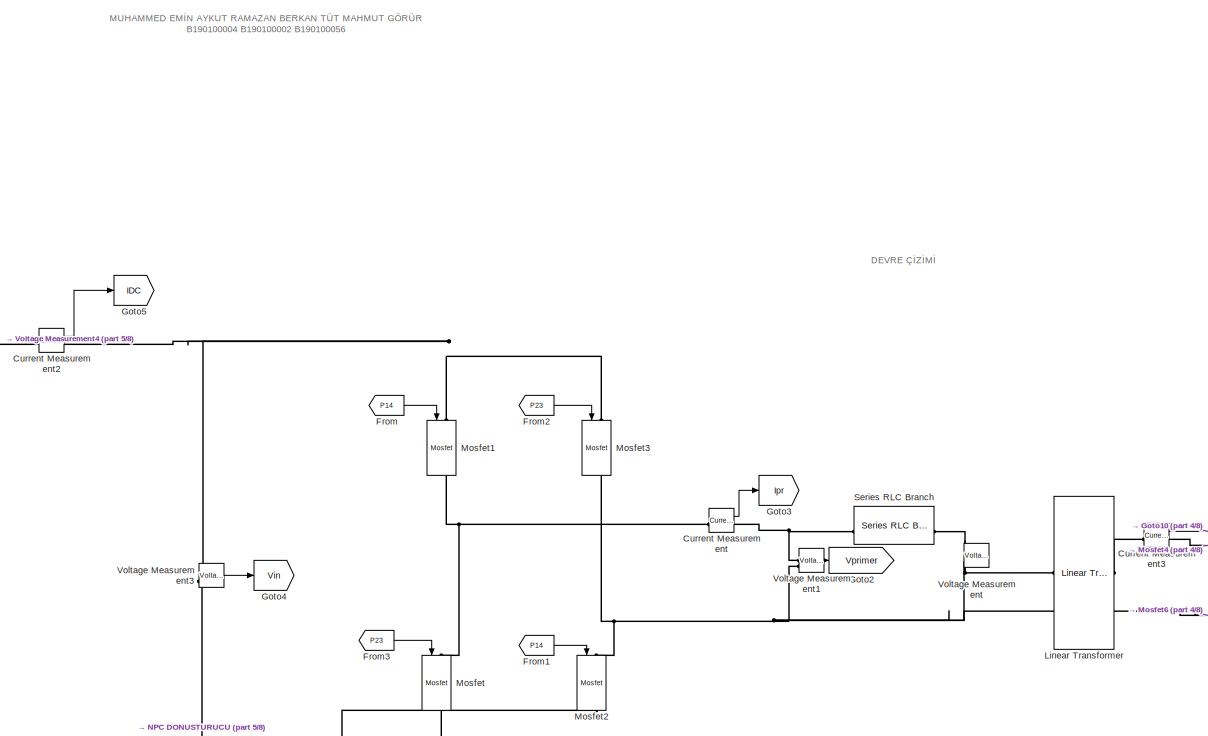
[diagram: root canvas - part 1/8, top center region]
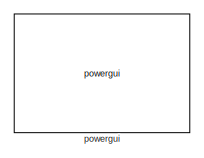
[diagram: root canvas - part 2/8, top left region]
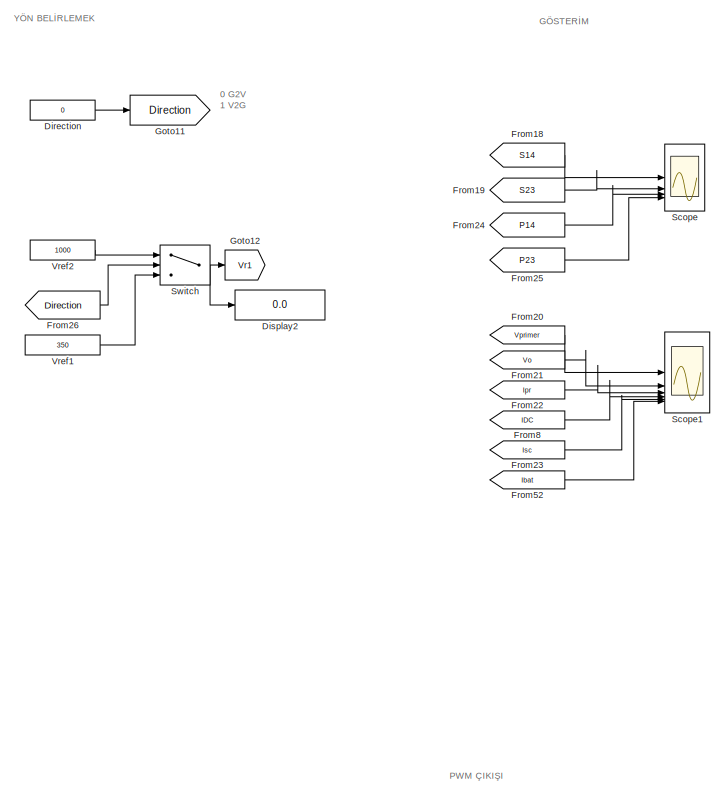
[diagram: root canvas - part 3/8, middle right region]
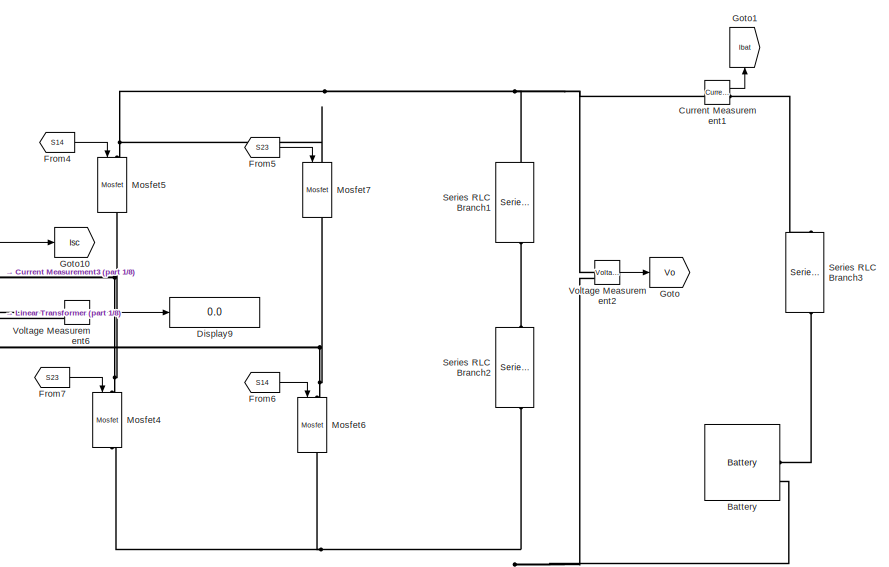
[diagram: root canvas - part 4/8, central region]
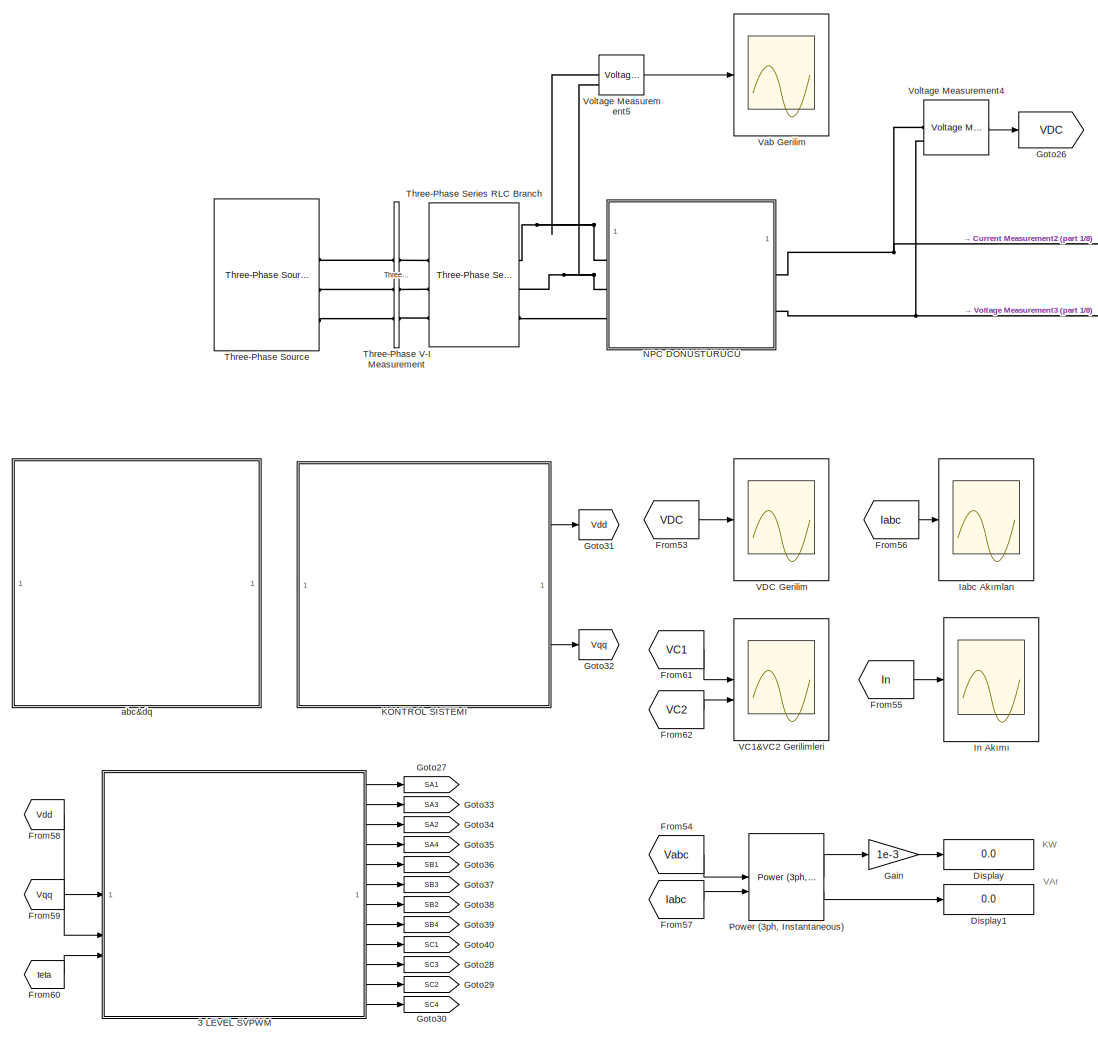
[diagram: root canvas - part 5/8, middle left region]
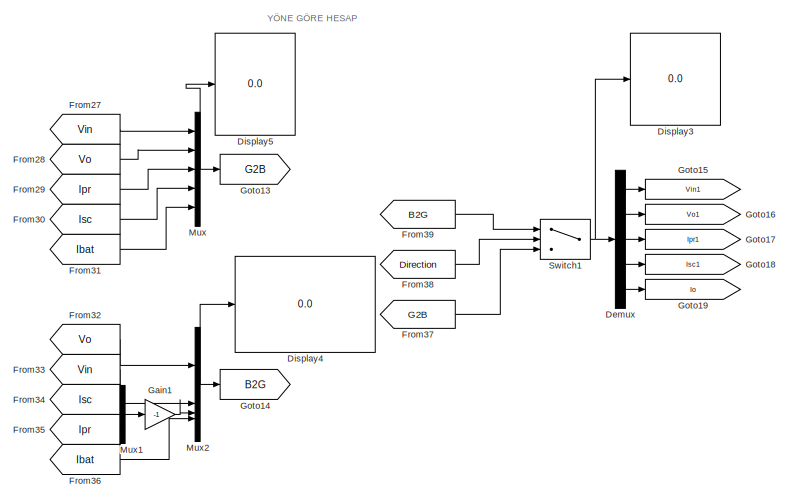
[diagram: root canvas - part 6/8, bottom center region]
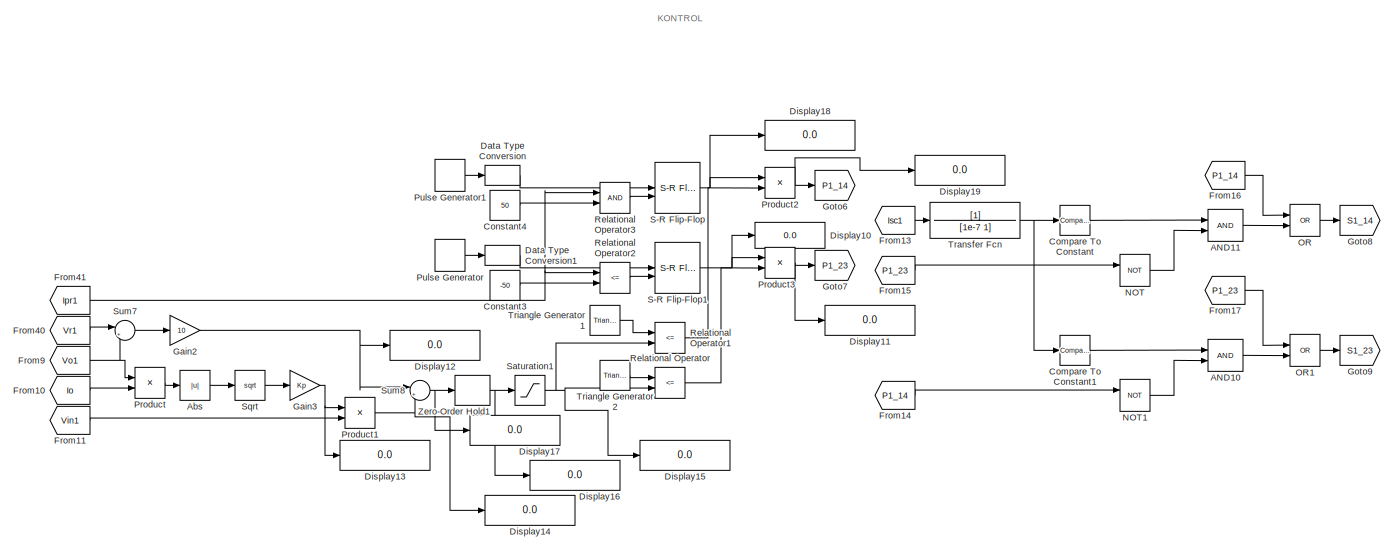
[diagram: root canvas - part 7/8, bottom center region]
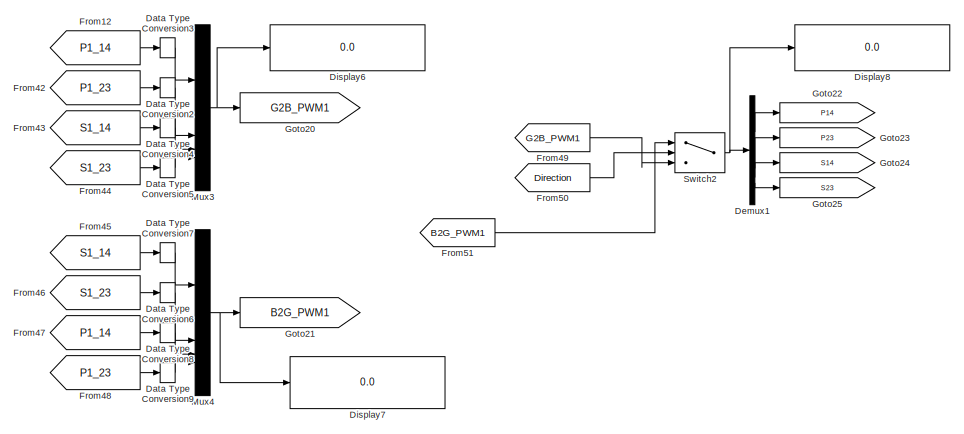
[diagram: root canvas - part 8/8, bottom right region]
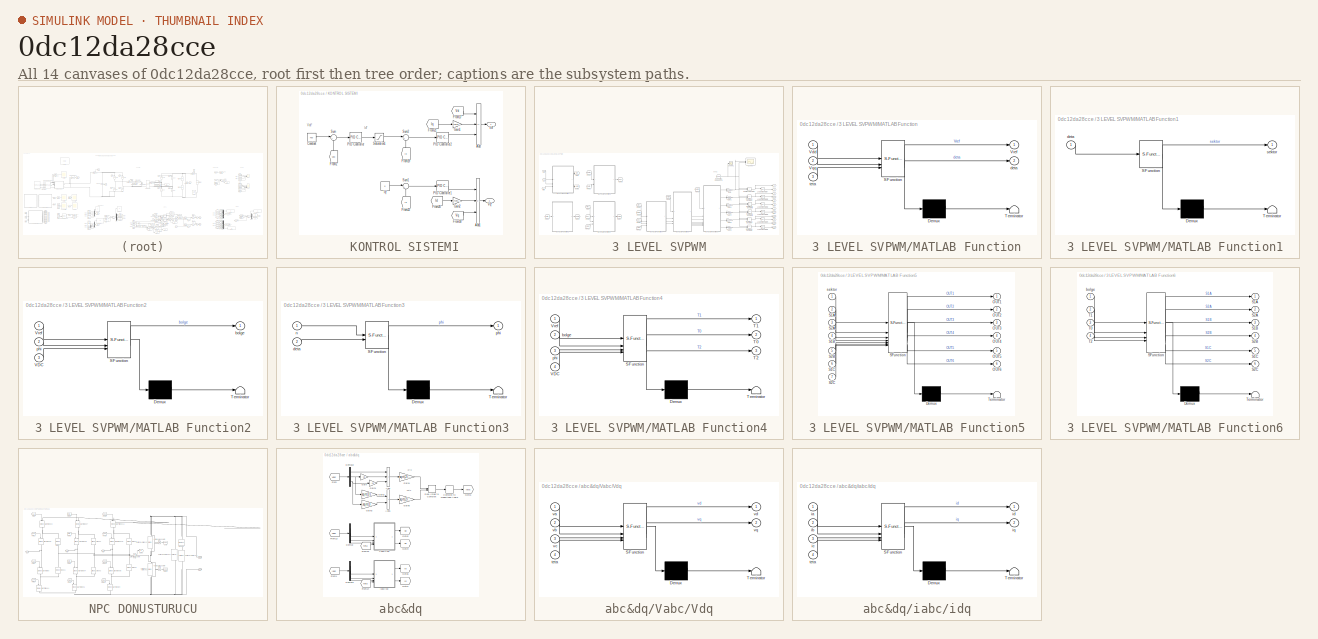
[diagram: thumbnail index - all 14 canvases of the model, root first then tree order]
MODEL slx_0dc12da28cce
KIND model
CONFIG AbsTol = auto
CONFIG EnableMultiTasking = off
CONFIG FixedStep = auto
CONFIG MaxStep = auto
CONFIG MinStep = auto
CONFIG RelTol = 1e-3
CONFIG SampleTimeConstraint = Unconstrained
CONFIG SolverName = VariableStepAuto
CONFIG StartTime = 0.0
CONFIG StopTime = 0.5
BLOCK [SubSystem]  KONTROL SISTEMI
BLOCK [Sum]  KONTROL SISTEMI/Add
  IconShape = rectangular
  Inputs = ++-
BLOCK [Sum]  KONTROL SISTEMI/Add1
  IconShape = rectangular
  Inputs = -++
BLOCK [Constant]  KONTROL SISTEMI/Constant
  Value = 700
BLOCK [From]  KONTROL SISTEMI/From17
  GotoTag = Vd
  TagVisibility = global
BLOCK [From]  KONTROL SISTEMI/From18
  GotoTag = Vq
  TagVisibility = global
BLOCK [From]  KONTROL SISTEMI/From19
  GotoTag = Id
  NameLocation = right
  TagVisibility = global
BLOCK [From]  KONTROL SISTEMI/From2
  GotoTag = VDC
  NameLocation = right
  TagVisibility = global
BLOCK [From]  KONTROL SISTEMI/From20
  GotoTag = Id
  TagVisibility = global
BLOCK [From]  KONTROL SISTEMI/From21
  GotoTag = Iq
  TagVisibility = global
BLOCK [From]  KONTROL SISTEMI/From22
  GotoTag = Iq
  NameLocation = right
  TagVisibility = global
BLOCK [Gain]  KONTROL SISTEMI/Gain1
  Gain = 2*pi*50*5e-3
BLOCK [Gain]  KONTROL SISTEMI/Gain2
  Gain = -2*pi*50*5e-3
BLOCK [Constant]  KONTROL SISTEMI/Iq*
  Value = 0
BLOCK [Reference]  KONTROL SISTEMI/PID Controller  REF=slpidlib/PID Controller
  SourceBlock = slpidlib/PID Controller
  SourceType = PID 1dof
BLOCK [Reference]  KONTROL SISTEMI/PID Controller1  REF=slpidlib/PID Controller
  SourceBlock = slpidlib/PID Controller
  SourceType = PID 1dof
BLOCK [Reference]  KONTROL SISTEMI/PID Controller2  REF=slpidlib/PID Controller
  SourceBlock = slpidlib/PID Controller
  SourceType = PID 1dof
BLOCK [Saturate]  KONTROL SISTEMI/Saturation1
  LowerLimit = -45
  UpperLimit = 45
BLOCK [Sum]  KONTROL SISTEMI/Sum
  Inputs = |+-
BLOCK [Sum]  KONTROL SISTEMI/Sum1
  Inputs = |+-
BLOCK [Sum]  KONTROL SISTEMI/Sum2
  Inputs = |+-
BLOCK [Outport]  KONTROL SISTEMI/Vd*
BLOCK [Outport]  KONTROL SISTEMI/Vq*
  Port = 2
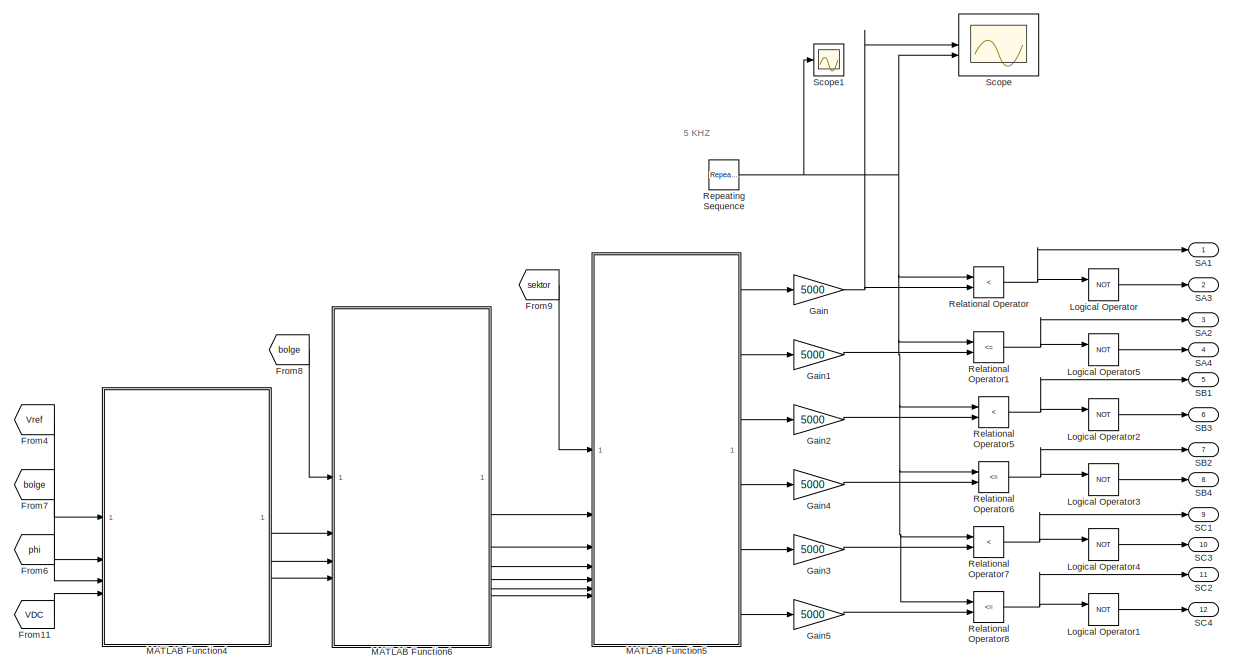
[diagram: 3 LEVEL SVPWM - part 1/2, right side, full height]
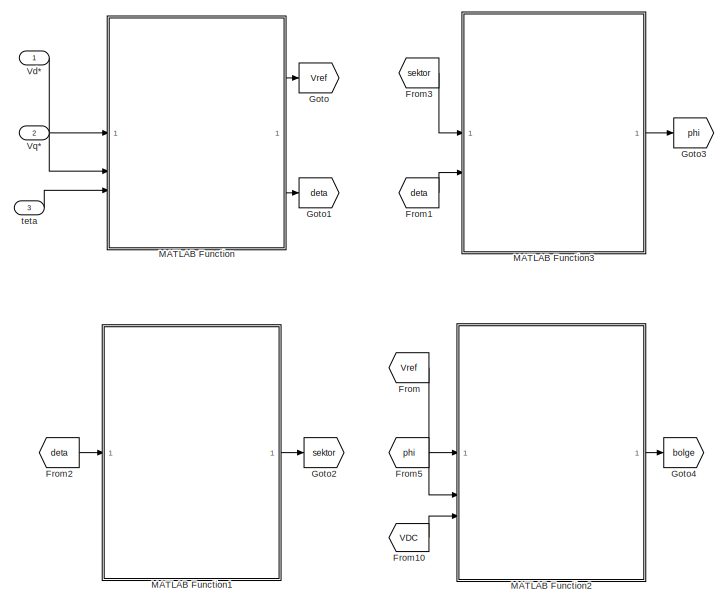
[diagram: 3 LEVEL SVPWM - part 2/2, left side, full height]
BLOCK [SubSystem] 3 LEVEL SVPWM
BLOCK [From] 3 LEVEL SVPWM/From
  GotoTag = Vref
BLOCK [From] 3 LEVEL SVPWM/From1
  GotoTag = deta
BLOCK [From] 3 LEVEL SVPWM/From10
  GotoTag = VDC
  TagVisibility = global
BLOCK [From] 3 LEVEL SVPWM/From11
  GotoTag = VDC
  TagVisibility = global
BLOCK [From] 3 LEVEL SVPWM/From2
  GotoTag = deta
BLOCK [From] 3 LEVEL SVPWM/From3
  GotoTag = sektor
BLOCK [From] 3 LEVEL SVPWM/From4
  GotoTag = Vref
BLOCK [From] 3 LEVEL SVPWM/From5
  GotoTag = phi
BLOCK [From] 3 LEVEL SVPWM/From6
  GotoTag = phi
BLOCK [From] 3 LEVEL SVPWM/From7
  GotoTag = bolge
BLOCK [From] 3 LEVEL SVPWM/From8
  GotoTag = bolge
BLOCK [From] 3 LEVEL SVPWM/From9
  GotoTag = sektor
BLOCK [Gain] 3 LEVEL SVPWM/Gain
  Gain = 5000
BLOCK [Gain] 3 LEVEL SVPWM/Gain1
  Gain = 5000
BLOCK [Gain] 3 LEVEL SVPWM/Gain2
  Gain = 5000
BLOCK [Gain] 3 LEVEL SVPWM/Gain3
  Gain = 5000
BLOCK [Gain] 3 LEVEL SVPWM/Gain4
  Gain = 5000
BLOCK [Gain] 3 LEVEL SVPWM/Gain5
  Gain = 5000
BLOCK [Goto] 3 LEVEL SVPWM/Goto
  GotoTag = Vref
BLOCK [Goto] 3 LEVEL SVPWM/Goto1
  GotoTag = deta
BLOCK [Goto] 3 LEVEL SVPWM/Goto2
  GotoTag = sektor
BLOCK [Goto] 3 LEVEL SVPWM/Goto3
  GotoTag = phi
BLOCK [Goto] 3 LEVEL SVPWM/Goto4
  GotoTag = bolge
BLOCK [Logic] 3 LEVEL SVPWM/Logical Operator
  AllPortsSameDT = off
  Operator = NOT
  OutDataTypeStr = boolean
BLOCK [Logic] 3 LEVEL SVPWM/Logical Operator1
  AllPortsSameDT = off
  Operator = NOT
  OutDataTypeStr = boolean
BLOCK [Logic] 3 LEVEL SVPWM/Logical Operator2
  AllPortsSameDT = off
  Operator = NOT
  OutDataTypeStr = boolean
BLOCK [Logic] 3 LEVEL SVPWM/Logical Operator3
  AllPortsSameDT = off
  Operator = NOT
  OutDataTypeStr = boolean
BLOCK [Logic] 3 LEVEL SVPWM/Logical Operator4
  AllPortsSameDT = off
  Operator = NOT
  OutDataTypeStr = boolean
BLOCK [Logic] 3 LEVEL SVPWM/Logical Operator5
  AllPortsSameDT = off
  Operator = NOT
  OutDataTypeStr = boolean
BLOCK [SubSystem] 3 LEVEL SVPWM/MATLAB Function
  ErrorFcn = Stateflow.Translate.translate
  PermitHierarchicalResolution = ExplicitOnly
  SFBlockType = MATLAB Function
  TreatAsAtomicUnit = on
BLOCK [Demux] 3 LEVEL SVPWM/MATLAB Function/ Demux 
  Outputs = 1
BLOCK [S-Function] 3 LEVEL SVPWM/MATLAB Function/ SFunction 
  EnableBusSupport = on
  FunctionName = sf_sfun
  PortCounts = [3 3]
  SFcnIsStateOwnerBlock = off
  SFunctionDeploymentMode = off
  Tag = Stateflow S-Function 2
BLOCK [Terminator] 3 LEVEL SVPWM/MATLAB Function/ Terminator 
BLOCK [Inport] 3 LEVEL SVPWM/MATLAB Function/Vdd
BLOCK [Inport] 3 LEVEL SVPWM/MATLAB Function/Vqq
  Port = 2
BLOCK [Outport] 3 LEVEL SVPWM/MATLAB Function/Vref
BLOCK [Outport] 3 LEVEL SVPWM/MATLAB Function/deta
  Port = 2
BLOCK [Inport] 3 LEVEL SVPWM/MATLAB Function/teta
  Port = 3
BLOCK [SubSystem] 3 LEVEL SVPWM/MATLAB Function1
  ErrorFcn = Stateflow.Translate.translate
  PermitHierarchicalResolution = ExplicitOnly
  SFBlockType = MATLAB Function
  TreatAsAtomicUnit = on
BLOCK [Demux] 3 LEVEL SVPWM/MATLAB Function1/ Demux 
  Outputs = 1
BLOCK [S-Function] 3 LEVEL SVPWM/MATLAB Function1/ SFunction 
  EnableBusSupport = on
  FunctionName = sf_sfun
  PortCounts = [1 2]
  SFcnIsStateOwnerBlock = off
  SFunctionDeploymentMode = off
  Tag = Stateflow S-Function 1
BLOCK [Terminator] 3 LEVEL SVPWM/MATLAB Function1/ Terminator 
BLOCK [Inport] 3 LEVEL SVPWM/MATLAB Function1/deta
BLOCK [Outport] 3 LEVEL SVPWM/MATLAB Function1/sektor
BLOCK [SubSystem] 3 LEVEL SVPWM/MATLAB Function2
  ErrorFcn = Stateflow.Translate.translate
  PermitHierarchicalResolution = ExplicitOnly
  SFBlockType = MATLAB Function
  TreatAsAtomicUnit = on
BLOCK [Demux] 3 LEVEL SVPWM/MATLAB Function2/ Demux 
  Outputs = 1
BLOCK [S-Function] 3 LEVEL SVPWM/MATLAB Function2/ SFunction 
  EnableBusSupport = on
  FunctionName = sf_sfun
  PortCounts = [3 2]
  SFcnIsStateOwnerBlock = off
  SFunctionDeploymentMode = off
  Tag = Stateflow S-Function 4
BLOCK [Terminator] 3 LEVEL SVPWM/MATLAB Function2/ Terminator 
BLOCK [Inport] 3 LEVEL SVPWM/MATLAB Function2/VDC
  Port = 3
BLOCK [Inport] 3 LEVEL SVPWM/MATLAB Function2/Vref
BLOCK [Outport] 3 LEVEL SVPWM/MATLAB Function2/bolge
BLOCK [Inport] 3 LEVEL SVPWM/MATLAB Function2/phi
  Port = 2
BLOCK [SubSystem] 3 LEVEL SVPWM/MATLAB Function3
  ErrorFcn = Stateflow.Translate.translate
  PermitHierarchicalResolution = ExplicitOnly
  SFBlockType = MATLAB Function
  TreatAsAtomicUnit = on
BLOCK [Demux] 3 LEVEL SVPWM/MATLAB Function3/ Demux 
  Outputs = 1
BLOCK [S-Function] 3 LEVEL SVPWM/MATLAB Function3/ SFunction 
  EnableBusSupport = on
  FunctionName = sf_sfun
  PortCounts = [2 2]
  SFcnIsStateOwnerBlock = off
  SFunctionDeploymentMode = off
  Tag = Stateflow S-Function 3
BLOCK [Terminator] 3 LEVEL SVPWM/MATLAB Function3/ Terminator 
BLOCK [Inport] 3 LEVEL SVPWM/MATLAB Function3/deta
  Port = 2
BLOCK [Inport] 3 LEVEL SVPWM/MATLAB Function3/n
BLOCK [Outport] 3 LEVEL SVPWM/MATLAB Function3/phi
BLOCK [SubSystem] 3 LEVEL SVPWM/MATLAB Function4
  ErrorFcn = Stateflow.Translate.translate
  PermitHierarchicalResolution = ExplicitOnly
  SFBlockType = MATLAB Function
  TreatAsAtomicUnit = on
BLOCK [Demux] 3 LEVEL SVPWM/MATLAB Function4/ Demux 
  Outputs = 1
BLOCK [S-Function] 3 LEVEL SVPWM/MATLAB Function4/ SFunction 
  EnableBusSupport = on
  FunctionName = sf_sfun
  PortCounts = [4 4]
  SFcnIsStateOwnerBlock = off
  SFunctionDeploymentMode = off
  Tag = Stateflow S-Function 5
BLOCK [Terminator] 3 LEVEL SVPWM/MATLAB Function4/ Terminator 
BLOCK [Outport] 3 LEVEL SVPWM/MATLAB Function4/T0
  Port = 2
BLOCK [Outport] 3 LEVEL SVPWM/MATLAB Function4/T1
BLOCK [Outport] 3 LEVEL SVPWM/MATLAB Function4/T2
  Port = 3
BLOCK [Inport] 3 LEVEL SVPWM/MATLAB Function4/VDC
  Port = 4
BLOCK [Inport] 3 LEVEL SVPWM/MATLAB Function4/Vref
BLOCK [Inport] 3 LEVEL SVPWM/MATLAB Function4/bolge
  Port = 2
BLOCK [Inport] 3 LEVEL SVPWM/MATLAB Function4/phi
  Port = 3
BLOCK [SubSystem] 3 LEVEL SVPWM/MATLAB Function5
  ErrorFcn = Stateflow.Translate.translate
  PermitHierarchicalResolution = ExplicitOnly
  SFBlockType = MATLAB Function
  TreatAsAtomicUnit = on
BLOCK [Demux] 3 LEVEL SVPWM/MATLAB Function5/ Demux 
  Outputs = 1
BLOCK [S-Function] 3 LEVEL SVPWM/MATLAB Function5/ SFunction 
  EnableBusSupport = on
  FunctionName = sf_sfun
  PortCounts = [7 7]
  SFcnIsStateOwnerBlock = off
  SFunctionDeploymentMode = off
  Tag = Stateflow S-Function 6
BLOCK [Terminator] 3 LEVEL SVPWM/MATLAB Function5/ Terminator 
BLOCK [Outport] 3 LEVEL SVPWM/MATLAB Function5/OUT1
BLOCK [Outport] 3 LEVEL SVPWM/MATLAB Function5/OUT2
  Port = 2
BLOCK [Outport] 3 LEVEL SVPWM/MATLAB Function5/OUT3
  Port = 3
BLOCK [Outport] 3 LEVEL SVPWM/MATLAB Function5/OUT4
  Port = 4
BLOCK [Outport] 3 LEVEL SVPWM/MATLAB Function5/OUT5
  Port = 5
BLOCK [Outport] 3 LEVEL SVPWM/MATLAB Function5/OUT6
  Port = 6
BLOCK [Inport] 3 LEVEL SVPWM/MATLAB Function5/S1A
  Port = 2
BLOCK [Inport] 3 LEVEL SVPWM/MATLAB Function5/S1B
  Port = 4
BLOCK [Inport] 3 LEVEL SVPWM/MATLAB Function5/S1C
  Port = 6
BLOCK [Inport] 3 LEVEL SVPWM/MATLAB Function5/S2A
  Port = 3
BLOCK [Inport] 3 LEVEL SVPWM/MATLAB Function5/S2B
  Port = 5
BLOCK [Inport] 3 LEVEL SVPWM/MATLAB Function5/S2C
  Port = 7
BLOCK [Inport] 3 LEVEL SVPWM/MATLAB Function5/sektor
BLOCK [SubSystem] 3 LEVEL SVPWM/MATLAB Function6
  ErrorFcn = Stateflow.Translate.translate
  PermitHierarchicalResolution = ExplicitOnly
  SFBlockType = MATLAB Function
  TreatAsAtomicUnit = on
BLOCK [Demux] 3 LEVEL SVPWM/MATLAB Function6/ Demux 
  Outputs = 1
BLOCK [S-Function] 3 LEVEL SVPWM/MATLAB Function6/ SFunction 
  EnableBusSupport = on
  FunctionName = sf_sfun
  PortCounts = [4 7]
  SFcnIsStateOwnerBlock = off
  SFunctionDeploymentMode = off
  Tag = Stateflow S-Function 7
BLOCK [Terminator] 3 LEVEL SVPWM/MATLAB Function6/ Terminator 
BLOCK [Outport] 3 LEVEL SVPWM/MATLAB Function6/S1A
BLOCK [Outport] 3 LEVEL SVPWM/MATLAB Function6/S1B
  Port = 3
BLOCK [Outport] 3 LEVEL SVPWM/MATLAB Function6/S1C
  Port = 5
BLOCK [Outport] 3 LEVEL SVPWM/MATLAB Function6/S2A
  Port = 2
BLOCK [Outport] 3 LEVEL SVPWM/MATLAB Function6/S2B
  Port = 4
BLOCK [Outport] 3 LEVEL SVPWM/MATLAB Function6/S2C
  Port = 6
BLOCK [Inport] 3 LEVEL SVPWM/MATLAB Function6/T0
  Port = 3
BLOCK [Inport] 3 LEVEL SVPWM/MATLAB Function6/T1
  Port = 2
BLOCK [Inport] 3 LEVEL SVPWM/MATLAB Function6/T2
  Port = 4
BLOCK [Inport] 3 LEVEL SVPWM/MATLAB Function6/bolge
BLOCK [RelationalOperator] 3 LEVEL SVPWM/Relational Operator
  InputSameDT = off
  Operator = <
  OutDataTypeStr = boolean
  RndMeth = Simplest
BLOCK [RelationalOperator] 3 LEVEL SVPWM/Relational Operator1
  InputSameDT = off
  Operator = <=
  OutDataTypeStr = boolean
  RndMeth = Simplest
BLOCK [RelationalOperator] 3 LEVEL SVPWM/Relational Operator5
  InputSameDT = off
  Operator = <
  OutDataTypeStr = boolean
  RndMeth = Simplest
BLOCK [RelationalOperator] 3 LEVEL SVPWM/Relational Operator6
  InputSameDT = off
  Operator = <=
  OutDataTypeStr = boolean
  RndMeth = Simplest
BLOCK [RelationalOperator] 3 LEVEL SVPWM/Relational Operator7
  InputSameDT = off
  Operator = <
  OutDataTypeStr = boolean
  RndMeth = Simplest
BLOCK [RelationalOperator] 3 LEVEL SVPWM/Relational Operator8
  InputSameDT = off
  Operator = <=
  OutDataTypeStr = boolean
  RndMeth = Simplest
BLOCK [Reference] 3 LEVEL SVPWM/Repeating Sequence  REF=simulink/Sources/Repeating
Sequence
  SourceBlock = simulink/Sources/Repeating\nSequence
  SourceType = Repeating table
BLOCK [Outport] 3 LEVEL SVPWM/SA1
BLOCK [Outport] 3 LEVEL SVPWM/SA2
  Port = 3
BLOCK [Outport] 3 LEVEL SVPWM/SA3
  Port = 2
BLOCK [Outport] 3 LEVEL SVPWM/SA4
  Port = 4
BLOCK [Outport] 3 LEVEL SVPWM/SB1
  Port = 5
BLOCK [Outport] 3 LEVEL SVPWM/SB2
  Port = 7
BLOCK [Outport] 3 LEVEL SVPWM/SB3
  Port = 6
BLOCK [Outport] 3 LEVEL SVPWM/SB4
  Port = 8
BLOCK [Outport] 3 LEVEL SVPWM/SC1
  Port = 9
BLOCK [Outport] 3 LEVEL SVPWM/SC2
  Port = 11
BLOCK [Outport] 3 LEVEL SVPWM/SC3
  Port = 10
BLOCK [Outport] 3 LEVEL SVPWM/SC4
  Port = 12
BLOCK [Scope] 3 LEVEL SVPWM/Scope
  Floating = off
  NumInputPorts = 2
  ScopeSpecificationString = Simulink.scopes.TimeScopeBlockCfg('CurrentConfiguration', extmgr.ConfigurationSet(extmgr.Configuration('Core','General UI',true),extmgr.Configuration('Core','Source UI',true),extmgr.Configuration('Sources','WiredSimulink',true),extmgr.Configuration('Visuals','Time Domain',true,'SerializedDisplays',{struct('MinYLimReal','-4.795','MaxYLimReal','2.93424','YLabelReal','','MinYLimMag','0.00000','MaxYLi...<+1437ch>
BLOCK [Scope] 3 LEVEL SVPWM/Scope1
  Floating = off
  NumInputPorts = 1
  ScopeSpecificationString = Simulink.scopes.TimeScopeBlockCfg('CurrentConfiguration', extmgr.ConfigurationSet(extmgr.Configuration('Core','General UI',true),extmgr.Configuration('Core','Source UI',true),extmgr.Configuration('Sources','WiredSimulink',true,'DataLoggingVariableName','ScopeData1'),extmgr.Configuration('Visuals','Time Domain',true,'SerializedDisplays',{struct('MinYLimReal','-0.0625','MaxYLimReal','0.5625','YLabel...<+1471ch>
BLOCK [Inport] 3 LEVEL SVPWM/Vd*
BLOCK [Inport] 3 LEVEL SVPWM/Vq*
  Port = 2
BLOCK [Inport] 3 LEVEL SVPWM/teta
  Port = 3
BLOCK [Logic] AND10
  AllPortsSameDT = off
  IconShape = distinctive
  OutDataTypeStr = boolean
BLOCK [Logic] AND11
  AllPortsSameDT = off
  IconShape = distinctive
  OutDataTypeStr = boolean
BLOCK [Abs] Abs
  SaturateOnIntegerOverflow = off
BLOCK [Reference] Battery  REF=spsBatteryLib/Battery
  LibrarySourceBlock = sps_lib/Sources/Battery
  SourceBlock = spsBatteryLib/Battery
  SourceType = Battery
BLOCK [Reference] Compare To Constant  REF=simulink/Logic and Bit
Operations/Compare
To Constant
  SourceBlock = simulink/Logic and Bit\nOperations/Compare\nTo Constant
  SourceType = Compare To Constant
BLOCK [Reference] Compare To Constant1  REF=simulink/Logic and Bit
Operations/Compare
To Constant
  SourceBlock = simulink/Logic and Bit\nOperations/Compare\nTo Constant
  SourceType = Compare To Constant
BLOCK [Constant] Constant3
  Value = -50
BLOCK [Constant] Constant4
  Value = 50
BLOCK [Reference] Current Measurement  REF=spsCurrentMeasurementLib/Current Measurement
  SourceBlock = spsCurrentMeasurementLib/Current Measurement
  SourceType = Current Measurement
  UserDataPersistent = on
BLOCK [Reference] Current Measurement1  REF=spsCurrentMeasurementLib/Current Measurement
  SourceBlock = spsCurrentMeasurementLib/Current Measurement
  SourceType = Current Measurement
  UserDataPersistent = on
BLOCK [Reference] Current Measurement2  REF=spsCurrentMeasurementLib/Current Measurement
  SourceBlock = spsCurrentMeasurementLib/Current Measurement
  SourceType = Current Measurement
  UserDataPersistent = on
BLOCK [Reference] Current Measurement3  REF=spsCurrentMeasurementLib/Current Measurement
  SourceBlock = spsCurrentMeasurementLib/Current Measurement
  SourceType = Current Measurement
  UserDataPersistent = on
BLOCK [DataTypeConversion] Data Type Conversion
  OutDataTypeStr = boolean
  RndMeth = Floor
  SaturateOnIntegerOverflow = off
BLOCK [DataTypeConversion] Data Type Conversion1
  OutDataTypeStr = boolean
  RndMeth = Floor
  SaturateOnIntegerOverflow = off
BLOCK [DataTypeConversion] Data Type Conversion2
  OutDataTypeStr = boolean
  RndMeth = Floor
  SaturateOnIntegerOverflow = off
BLOCK [DataTypeConversion] Data Type Conversion3
  OutDataTypeStr = boolean
  RndMeth = Floor
  SaturateOnIntegerOverflow = off
BLOCK [DataTypeConversion] Data Type Conversion4
  OutDataTypeStr = boolean
  RndMeth = Floor
  SaturateOnIntegerOverflow = off
BLOCK [DataTypeConversion] Data Type Conversion5
  OutDataTypeStr = boolean
  RndMeth = Floor
  SaturateOnIntegerOverflow = off
BLOCK [DataTypeConversion] Data Type Conversion6
  OutDataTypeStr = boolean
  RndMeth = Floor
  SaturateOnIntegerOverflow = off
BLOCK [DataTypeConversion] Data Type Conversion7
  OutDataTypeStr = boolean
  RndMeth = Floor
  SaturateOnIntegerOverflow = off
BLOCK [DataTypeConversion] Data Type Conversion8
  OutDataTypeStr = boolean
  RndMeth = Floor
  SaturateOnIntegerOverflow = off
BLOCK [DataTypeConversion] Data Type Conversion9
  OutDataTypeStr = boolean
  RndMeth = Floor
  SaturateOnIntegerOverflow = off
BLOCK [Demux] Demux
  Outputs = 5
BLOCK [Demux] Demux1
BLOCK [Constant] Direction
  Value = 0
BLOCK [Display] Display
  Decimation = 1
  NameLocation = left
BLOCK [Display] Display1
  Decimation = 1
BLOCK [Display] Display10
  Decimation = 1
BLOCK [Display] Display11
  Decimation = 1
BLOCK [Display] Display12
  Decimation = 1
BLOCK [Display] Display13
  Decimation = 1
BLOCK [Display] Display14
  Decimation = 1
BLOCK [Display] Display15
  Decimation = 1
BLOCK [Display] Display16
  Decimation = 1
BLOCK [Display] Display17
  Decimation = 1
BLOCK [Display] Display18
  Decimation = 1
BLOCK [Display] Display19
  Decimation = 1
BLOCK [Display] Display2
  Decimation = 1
BLOCK [Display] Display3
  Decimation = 1
BLOCK [Display] Display4
  Decimation = 1
BLOCK [Display] Display5
  Decimation = 1
BLOCK [Display] Display6
  Decimation = 1
BLOCK [Display] Display7
  Decimation = 1
BLOCK [Display] Display8
  Decimation = 1
BLOCK [Display] Display9
  Decimation = 1
BLOCK [From] From
  GotoTag = P14
BLOCK [From] From1
  GotoTag = P14
BLOCK [From] From10
  GotoTag = Io
BLOCK [From] From11
  GotoTag = Vin1
BLOCK [From] From12
  GotoTag = P1_14
BLOCK [From] From13
  GotoTag = Isc1
BLOCK [From] From14
  GotoTag = P1_14
BLOCK [From] From15
  GotoTag = P1_23
BLOCK [From] From16
  GotoTag = P1_14
BLOCK [From] From17
  GotoTag = P1_23
BLOCK [From] From18
  GotoTag = S14
  NameLocation = top
BLOCK [From] From19
  GotoTag = S23
BLOCK [From] From2
  GotoTag = P23
BLOCK [From] From20
  GotoTag = Vprimer
BLOCK [From] From21
  GotoTag = Vo
BLOCK [From] From22
  GotoTag = Ipr
BLOCK [From] From23
  GotoTag = Isc
BLOCK [From] From24
  GotoTag = P14
BLOCK [From] From25
  GotoTag = P23
BLOCK [From] From26
  GotoTag = Direction
BLOCK [From] From27
  GotoTag = Vin
BLOCK [From] From28
  GotoTag = Vo
BLOCK [From] From29
  GotoTag = Ipr
BLOCK [From] From3
  GotoTag = P23
BLOCK [From] From30
  GotoTag = Isc
BLOCK [From] From31
  GotoTag = Ibat
BLOCK [From] From32
  GotoTag = Vo
BLOCK [From] From33
  GotoTag = Vin
BLOCK [From] From34
  GotoTag = Isc
BLOCK [From] From35
  GotoTag = Ipr
BLOCK [From] From36
  GotoTag = Ibat
BLOCK [From] From37
  GotoTag = G2B
BLOCK [From] From38
  GotoTag = Direction
BLOCK [From] From39
  GotoTag = B2G
BLOCK [From] From4
  GotoTag = S14
BLOCK [From] From40
  GotoTag = Vr1
BLOCK [From] From41
  GotoTag = Ipr1
BLOCK [From] From42
  GotoTag = P1_23
BLOCK [From] From43
  GotoTag = S1_14
BLOCK [From] From44
  GotoTag = S1_23
BLOCK [From] From45
  GotoTag = S1_14
BLOCK [From] From46
  GotoTag = S1_23
BLOCK [From] From47
  GotoTag = P1_14
BLOCK [From] From48
  GotoTag = P1_23
BLOCK [From] From49
  GotoTag = G2B_PWM1
BLOCK [From] From5
  GotoTag = S23
BLOCK [From] From50
  GotoTag = Direction
BLOCK [From] From51
  GotoTag = B2G_PWM1
BLOCK [From] From52
  GotoTag = Ibat
BLOCK [From] From53
  GotoTag = VDC
  TagVisibility = global
BLOCK [From] From54
  GotoTag = Vabc
  TagVisibility = global
BLOCK [From] From55
  GotoTag = In
  TagVisibility = global
BLOCK [From] From56
  GotoTag = Iabc
  TagVisibility = global
BLOCK [From] From57
  GotoTag = Iabc
  TagVisibility = global
BLOCK [From] From58
  GotoTag = Vdd
BLOCK [From] From59
  GotoTag = Vqq
BLOCK [From] From6
  GotoTag = S14
BLOCK [From] From60
  GotoTag = teta
  TagVisibility = global
BLOCK [From] From61
  GotoTag = VC1
  TagVisibility = global
BLOCK [From] From62
  GotoTag = VC2
  TagVisibility = global
BLOCK [From] From7
  GotoTag = S23
BLOCK [From] From8
  GotoTag = IDC
BLOCK [From] From9
  GotoTag = Vo1
BLOCK [Gain] Gain
  Gain = 1e-3
BLOCK [Gain] Gain1
  Gain = -1
BLOCK [Gain] Gain2
  Gain = 10
BLOCK [Gain] Gain3
  Gain = Kp
BLOCK [Goto] Goto
  GotoTag = Vo
BLOCK [Goto] Goto1
  GotoTag = Ibat
  NameLocation = right
BLOCK [Goto] Goto10
  GotoTag = Isc
BLOCK [Goto] Goto11
  GotoTag = Direction
BLOCK [Goto] Goto12
  GotoTag = Vr1
BLOCK [Goto] Goto13
  GotoTag = G2B
BLOCK [Goto] Goto14
  GotoTag = B2G
BLOCK [Goto] Goto15
  GotoTag = Vin1
BLOCK [Goto] Goto16
  GotoTag = Vo1
BLOCK [Goto] Goto17
  GotoTag = Ipr1
BLOCK [Goto] Goto18
  GotoTag = Isc1
BLOCK [Goto] Goto19
  GotoTag = Io
BLOCK [Goto] Goto2
  GotoTag = Vprimer
BLOCK [Goto] Goto20
  GotoTag = G2B_PWM1
BLOCK [Goto] Goto21
  GotoTag = B2G_PWM1
BLOCK [Goto] Goto22
  GotoTag = P14
BLOCK [Goto] Goto23
  GotoTag = P23
BLOCK [Goto] Goto24
  GotoTag = S14
BLOCK [Goto] Goto25
  GotoTag = S23
BLOCK [Goto] Goto26
  GotoTag = VDC
  TagVisibility = global
BLOCK [Goto] Goto27
  GotoTag = SA1
  TagVisibility = global
BLOCK [Goto] Goto28
  GotoTag = SC3
  TagVisibility = global
BLOCK [Goto] Goto29
  GotoTag = SC2
  TagVisibility = global
BLOCK [Goto] Goto3
  GotoTag = Ipr
BLOCK [Goto] Goto30
  GotoTag = SC4
  TagVisibility = global
BLOCK [Goto] Goto31
  GotoTag = Vdd
BLOCK [Goto] Goto32
  GotoTag = Vqq
BLOCK [Goto] Goto33
  GotoTag = SA3
  TagVisibility = global
BLOCK [Goto] Goto34
  GotoTag = SA2
  TagVisibility = global
BLOCK [Goto] Goto35
  GotoTag = SA4
  TagVisibility = global
BLOCK [Goto] Goto36
  GotoTag = SB1
  TagVisibility = global
BLOCK [Goto] Goto37
  GotoTag = SB3
  TagVisibility = global
BLOCK [Goto] Goto38
  GotoTag = SB2
  TagVisibility = global
BLOCK [Goto] Goto39
  GotoTag = SB4
  TagVisibility = global
BLOCK [Goto] Goto4
  GotoTag = Vin
BLOCK [Goto] Goto40
  GotoTag = SC1
  TagVisibility = global
BLOCK [Goto] Goto5
  GotoTag = IDC
BLOCK [Goto] Goto6
  GotoTag = P1_14
BLOCK [Goto] Goto7
  GotoTag = P1_23
BLOCK [Goto] Goto8
  GotoTag = S1_14
BLOCK [Goto] Goto9
  GotoTag = S1_23
BLOCK [Scope] Iabc Akımları
  Floating = off
  NumInputPorts = 1
  ScopeSpecificationString = Simulink.scopes.TimeScopeBlockCfg('CurrentConfiguration', extmgr.ConfigurationSet(extmgr.Configuration('Core','General UI',true),extmgr.Configuration('Core','Source UI',true),extmgr.Configuration('Sources','WiredSimulink',true,'DataLoggingVariableName','ScopeData1','DataLogging',true,'DataLoggingSaveFormat','StructureWithTime'),extmgr.Configuration('Visuals','Time Domain',true,'SerializedDisplays'...<+1564ch>
BLOCK [Scope] In Akımı
  Floating = off
  NumInputPorts = 1
  ScopeSpecificationString = Simulink.scopes.TimeScopeBlockCfg('CurrentConfiguration', extmgr.ConfigurationSet(extmgr.Configuration('Core','General UI',true),extmgr.Configuration('Core','Source UI',true),extmgr.Configuration('Sources','WiredSimulink',true,'DataLoggingVariableName','ScopeData2'),extmgr.Configuration('Visuals','Time Domain',true,'SerializedDisplays',{struct('MinYLimReal','-30.6873','MaxYLimReal','30.8346','YLab...<+1478ch>
BLOCK [Reference] Linear Transformer  REF=spsLinearTransformerLib/Linear Transformer
  SourceBlock = spsLinearTransformerLib/Linear Transformer
  SourceType = Linear Transformer
BLOCK [Reference] Mosfet  REF=spsMosfetLib/Mosfet
  NameLocation = right
  SourceBlock = spsMosfetLib/Mosfet
  SourceType = Mosfet
BLOCK [Reference] Mosfet1  REF=spsMosfetLib/Mosfet
  NameLocation = right
  SourceBlock = spsMosfetLib/Mosfet
  SourceType = Mosfet
BLOCK [Reference] Mosfet2  REF=spsMosfetLib/Mosfet
  NameLocation = right
  SourceBlock = spsMosfetLib/Mosfet
  SourceType = Mosfet
BLOCK [Reference] Mosfet3  REF=spsMosfetLib/Mosfet
  NameLocation = right
  SourceBlock = spsMosfetLib/Mosfet
  SourceType = Mosfet
BLOCK [Reference] Mosfet4  REF=spsMosfetLib/Mosfet
  NameLocation = right
  SourceBlock = spsMosfetLib/Mosfet
  SourceType = Mosfet
BLOCK [Reference] Mosfet5  REF=spsMosfetLib/Mosfet
  NameLocation = right
  SourceBlock = spsMosfetLib/Mosfet
  SourceType = Mosfet
BLOCK [Reference] Mosfet6  REF=spsMosfetLib/Mosfet
  NameLocation = right
  SourceBlock = spsMosfetLib/Mosfet
  SourceType = Mosfet
BLOCK [Reference] Mosfet7  REF=spsMosfetLib/Mosfet
  NameLocation = right
  SourceBlock = spsMosfetLib/Mosfet
  SourceType = Mosfet
BLOCK [Mux] Mux
  DisplayOption = bar
  Inputs = 5
BLOCK [Mux] Mux1
  DisplayOption = bar
  Inputs = 2
BLOCK [Mux] Mux2
  DisplayOption = bar
BLOCK [Mux] Mux3
  DisplayOption = bar
BLOCK [Mux] Mux4
  DisplayOption = bar
BLOCK [Logic] NOT
  AllPortsSameDT = off
  IconShape = distinctive
  Operator = NOT
  OutDataTypeStr = boolean
BLOCK [Logic] NOT1
  AllPortsSameDT = off
  IconShape = distinctive
  Operator = NOT
  OutDataTypeStr = boolean
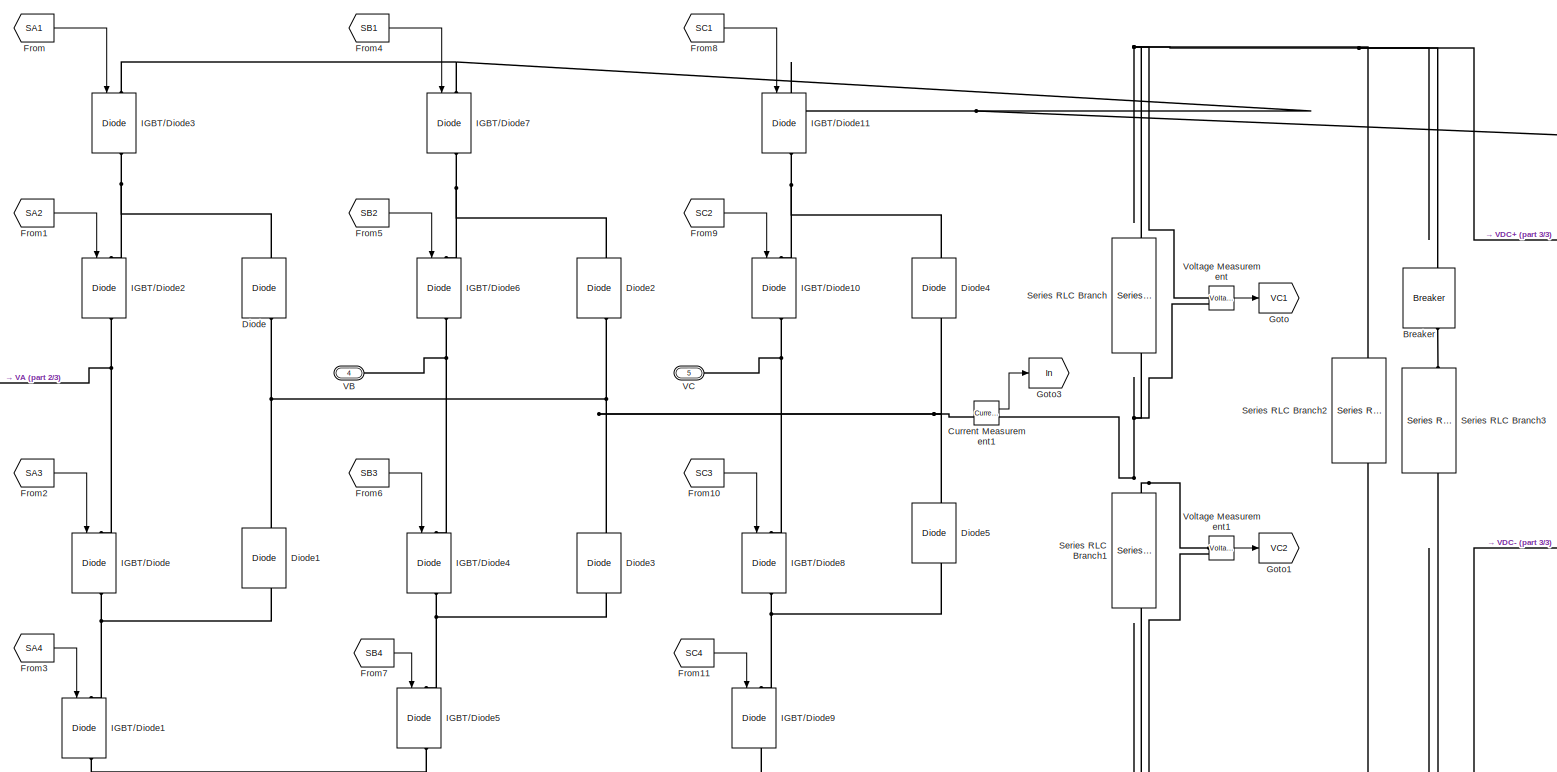
[diagram: NPC DONUSTURUCU - part 1/3, center side, full height]
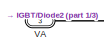
[diagram: NPC DONUSTURUCU - part 2/3, middle left region]
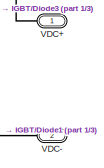
[diagram: NPC DONUSTURUCU - part 3/3, middle right region]
BLOCK [SubSystem] NPC DONUSTURUCU
BLOCK [Reference] NPC DONUSTURUCU/Breaker  REF=spsBreakerLib/Breaker
  NameLocation = left
  SourceBlock = spsBreakerLib/Breaker
  SourceType = Breaker
BLOCK [Reference] NPC DONUSTURUCU/Current Measurement1  REF=spsCurrentMeasurementLib/Current Measurement
  SourceBlock = spsCurrentMeasurementLib/Current Measurement
  SourceType = Current Measurement
  UserDataPersistent = on
BLOCK [Reference] NPC DONUSTURUCU/Diode  REF=spsDiodeLib/Diode
  NameLocation = right
  SourceBlock = spsDiodeLib/Diode
  SourceType = Diode
BLOCK [Reference] NPC DONUSTURUCU/Diode1  REF=spsDiodeLib/Diode
  NameLocation = right
  SourceBlock = spsDiodeLib/Diode
  SourceType = Diode
BLOCK [Reference] NPC DONUSTURUCU/Diode2  REF=spsDiodeLib/Diode
  NameLocation = right
  SourceBlock = spsDiodeLib/Diode
  SourceType = Diode
BLOCK [Reference] NPC DONUSTURUCU/Diode3  REF=spsDiodeLib/Diode
  NameLocation = right
  SourceBlock = spsDiodeLib/Diode
  SourceType = Diode
BLOCK [Reference] NPC DONUSTURUCU/Diode4  REF=spsDiodeLib/Diode
  NameLocation = right
  SourceBlock = spsDiodeLib/Diode
  SourceType = Diode
BLOCK [Reference] NPC DONUSTURUCU/Diode5  REF=spsDiodeLib/Diode
  NameLocation = right
  SourceBlock = spsDiodeLib/Diode
  SourceType = Diode
BLOCK [From] NPC DONUSTURUCU/From
  GotoTag = SA1
  TagVisibility = global
BLOCK [From] NPC DONUSTURUCU/From1
  GotoTag = SA2
  TagVisibility = global
BLOCK [From] NPC DONUSTURUCU/From10
  GotoTag = SC3
  TagVisibility = global
BLOCK [From] NPC DONUSTURUCU/From11
  GotoTag = SC4
  TagVisibility = global
BLOCK [From] NPC DONUSTURUCU/From2
  GotoTag = SA3
  TagVisibility = global
BLOCK [From] NPC DONUSTURUCU/From3
  GotoTag = SA4
  TagVisibility = global
BLOCK [From] NPC DONUSTURUCU/From4
  GotoTag = SB1
  TagVisibility = global
BLOCK [From] NPC DONUSTURUCU/From5
  GotoTag = SB2
  TagVisibility = global
BLOCK [From] NPC DONUSTURUCU/From6
  GotoTag = SB3
  TagVisibility = global
BLOCK [From] NPC DONUSTURUCU/From7
  GotoTag = SB4
  TagVisibility = global
BLOCK [From] NPC DONUSTURUCU/From8
  GotoTag = SC1
  TagVisibility = global
BLOCK [From] NPC DONUSTURUCU/From9
  GotoTag = SC2
  TagVisibility = global
BLOCK [Goto] NPC DONUSTURUCU/Goto
  GotoTag = VC1
  TagVisibility = global
BLOCK [Goto] NPC DONUSTURUCU/Goto1
  GotoTag = VC2
  TagVisibility = global
BLOCK [Goto] NPC DONUSTURUCU/Goto3
  GotoTag = In
  TagVisibility = global
BLOCK [Reference] NPC DONUSTURUCU/IGBT//Diode  REF=spsIGBTDiodeLib/IGBT//Diode
  NameLocation = left
  SourceBlock = spsIGBTDiodeLib/IGBT//Diode
  SourceType = IGBT/Diode
BLOCK [Reference] NPC DONUSTURUCU/IGBT//Diode1  REF=spsIGBTDiodeLib/IGBT//Diode
  NameLocation = left
  SourceBlock = spsIGBTDiodeLib/IGBT//Diode
  SourceType = IGBT/Diode
BLOCK [Reference] NPC DONUSTURUCU/IGBT//Diode10  REF=spsIGBTDiodeLib/IGBT//Diode
  NameLocation = left
  SourceBlock = spsIGBTDiodeLib/IGBT//Diode
  SourceType = IGBT/Diode
BLOCK [Reference] NPC DONUSTURUCU/IGBT//Diode11  REF=spsIGBTDiodeLib/IGBT//Diode
  NameLocation = left
  SourceBlock = spsIGBTDiodeLib/IGBT//Diode
  SourceType = IGBT/Diode
BLOCK [Reference] NPC DONUSTURUCU/IGBT//Diode2  REF=spsIGBTDiodeLib/IGBT//Diode
  NameLocation = left
  SourceBlock = spsIGBTDiodeLib/IGBT//Diode
  SourceType = IGBT/Diode
BLOCK [Reference] NPC DONUSTURUCU/IGBT//Diode3  REF=spsIGBTDiodeLib/IGBT//Diode
  NameLocation = left
  SourceBlock = spsIGBTDiodeLib/IGBT//Diode
  SourceType = IGBT/Diode
BLOCK [Reference] NPC DONUSTURUCU/IGBT//Diode4  REF=spsIGBTDiodeLib/IGBT//Diode
  NameLocation = left
  SourceBlock = spsIGBTDiodeLib/IGBT//Diode
  SourceType = IGBT/Diode
BLOCK [Reference] NPC DONUSTURUCU/IGBT//Diode5  REF=spsIGBTDiodeLib/IGBT//Diode
  NameLocation = left
  SourceBlock = spsIGBTDiodeLib/IGBT//Diode
  SourceType = IGBT/Diode
BLOCK [Reference] NPC DONUSTURUCU/IGBT//Diode6  REF=spsIGBTDiodeLib/IGBT//Diode
  NameLocation = left
  SourceBlock = spsIGBTDiodeLib/IGBT//Diode
  SourceType = IGBT/Diode
BLOCK [Reference] NPC DONUSTURUCU/IGBT//Diode7  REF=spsIGBTDiodeLib/IGBT//Diode
  NameLocation = left
  SourceBlock = spsIGBTDiodeLib/IGBT//Diode
  SourceType = IGBT/Diode
BLOCK [Reference] NPC DONUSTURUCU/IGBT//Diode8  REF=spsIGBTDiodeLib/IGBT//Diode
  NameLocation = left
  SourceBlock = spsIGBTDiodeLib/IGBT//Diode
  SourceType = IGBT/Diode
BLOCK [Reference] NPC DONUSTURUCU/IGBT//Diode9  REF=spsIGBTDiodeLib/IGBT//Diode
  NameLocation = left
  SourceBlock = spsIGBTDiodeLib/IGBT//Diode
  SourceType = IGBT/Diode
BLOCK [Reference] NPC DONUSTURUCU/Series RLC Branch  REF=spsSeriesRLCBranchLib/Series RLC Branch
  NameLocation = left
  SourceBlock = spsSeriesRLCBranchLib/Series RLC Branch
  SourceType = Series RLC Branch
BLOCK [Reference] NPC DONUSTURUCU/Series RLC Branch1  REF=spsSeriesRLCBranchLib/Series RLC Branch
  NameLocation = left
  SourceBlock = spsSeriesRLCBranchLib/Series RLC Branch
  SourceType = Series RLC Branch
BLOCK [Reference] NPC DONUSTURUCU/Series RLC Branch2  REF=spsSeriesRLCBranchLib/Series RLC Branch
  NameLocation = left
  SourceBlock = spsSeriesRLCBranchLib/Series RLC Branch
  SourceType = Series RLC Branch
BLOCK [Reference] NPC DONUSTURUCU/Series RLC Branch3  REF=spsSeriesRLCBranchLib/Series RLC Branch
  NameLocation = left
  SourceBlock = spsSeriesRLCBranchLib/Series RLC Branch
  SourceType = Series RLC Branch
BLOCK [PMIOPort] NPC DONUSTURUCU/VA
  Port = 3
  Side = Left
BLOCK [PMIOPort] NPC DONUSTURUCU/VB
  Port = 4
  Side = Left
BLOCK [PMIOPort] NPC DONUSTURUCU/VC
  Port = 5
  Side = Left
BLOCK [PMIOPort] NPC DONUSTURUCU/VDC+
  NameLocation = top
  Side = Right
BLOCK [PMIOPort] NPC DONUSTURUCU/VDC-
  NameLocation = top
  Port = 2
  Side = Right
BLOCK [Reference] NPC DONUSTURUCU/Voltage Measurement  REF=spsVoltageMeasurementLib/Voltage Measurement
  SourceBlock = spsVoltageMeasurementLib/Voltage Measurement
  SourceType = Voltage Measurement
  UserDataPersistent = on
BLOCK [Reference] NPC DONUSTURUCU/Voltage Measurement1  REF=spsVoltageMeasurementLib/Voltage Measurement
  SourceBlock = spsVoltageMeasurementLib/Voltage Measurement
  SourceType = Voltage Measurement
  UserDataPersistent = on
BLOCK [Logic] OR
  AllPortsSameDT = off
  IconShape = distinctive
  Operator = OR
  OutDataTypeStr = boolean
BLOCK [Logic] OR1
  AllPortsSameDT = off
  IconShape = distinctive
  Operator = OR
  OutDataTypeStr = boolean
BLOCK [Reference] Power (3ph, Instantaneous)  REF=spsPower3phInstantaneousLib/Power
(3ph, Instantaneous)
  SourceBlock = spsPower3phInstantaneousLib/Power\n(3ph, Instantaneous)
  SourceType = Power (3ph, Instantaneous)
BLOCK [Product] Product
BLOCK [Product] Product1
  Inputs = */
BLOCK [Product] Product2
BLOCK [Product] Product3
BLOCK [DiscretePulseGenerator] Pulse Generator
  Period = 1/fsw
  PhaseDelay = tsw
  PulseType = Time based
  PulseWidth = 10
BLOCK [DiscretePulseGenerator] Pulse Generator1
  Period = 1/fsw
  PulseType = Time based
  PulseWidth = 10
  VectorParams1D = off
BLOCK [RelationalOperator] Relational Operator
  InputSameDT = off
  Operator = <=
  OutDataTypeStr = boolean
  RndMeth = Simplest
BLOCK [RelationalOperator] Relational Operator1
  InputSameDT = off
  Operator = <=
  OutDataTypeStr = boolean
  RndMeth = Simplest
BLOCK [RelationalOperator] Relational Operator2
  InputSameDT = off
  Operator = <=
  OutDataTypeStr = boolean
  RndMeth = Floor
BLOCK [RelationalOperator] Relational Operator3
  InputSameDT = off
  OutDataTypeStr = boolean
  RndMeth = Simplest
BLOCK [Reference] S-R Flip-Flop  REF=simulink_extras/Flip Flops/S-R
Flip-Flop
  SourceBlock = simulink_extras/Flip Flops/S-R\nFlip-Flop
  SourceType = SRFlipFlop
BLOCK [Reference] S-R Flip-Flop1  REF=simulink_extras/Flip Flops/S-R
Flip-Flop
  SourceBlock = simulink_extras/Flip Flops/S-R\nFlip-Flop
  SourceType = SRFlipFlop
BLOCK [Saturate] Saturation1
  LowerLimit = 0
BLOCK [Scope] Scope
  Floating = off
  NumInputPorts = 4
  ScopeSpecificationString = Simulink.scopes.TimeScopeBlockCfg('CurrentConfiguration', extmgr.ConfigurationSet(extmgr.Configuration('Core','General UI',true),extmgr.Configuration('Core','Source UI',true),extmgr.Configuration('Sources','WiredSimulink',true,'DataLoggingSaveFormat','Array','DataLoggingLimitDataPoints',true,'DataLoggingDecimation','1','DataLoggingVariableName','ScopeData1'),extmgr.Configuration('Visuals','Time Do...<+3742ch>
BLOCK [Scope] Scope1
  Floating = off
  NumInputPorts = 6
  ScopeSpecificationString = Simulink.scopes.TimeScopeBlockCfg('CurrentConfiguration', extmgr.ConfigurationSet(extmgr.Configuration('Core','General UI',true),extmgr.Configuration('Core','Source UI',true),extmgr.Configuration('Sources','WiredSimulink',true,'DataLoggingSaveFormat','Array','DataLoggingLimitDataPoints',true,'DataLoggingDecimation','1','DataLoggingVariableName','ScopeData2'),extmgr.Configuration('Visuals','Time Do...<+5140ch>
BLOCK [Reference] Series RLC Branch  REF=spsSeriesRLCBranchLib/Series RLC Branch
  SourceBlock = spsSeriesRLCBranchLib/Series RLC Branch
  SourceType = Series RLC Branch
BLOCK [Reference] Series RLC Branch1  REF=spsSeriesRLCBranchLib/Series RLC Branch
  NameLocation = left
  SourceBlock = spsSeriesRLCBranchLib/Series RLC Branch
  SourceType = Series RLC Branch
BLOCK [Reference] Series RLC Branch2  REF=spsSeriesRLCBranchLib/Series RLC Branch
  NameLocation = left
  SourceBlock = spsSeriesRLCBranchLib/Series RLC Branch
  SourceType = Series RLC Branch
BLOCK [Reference] Series RLC Branch3  REF=spsSeriesRLCBranchLib/Series RLC Branch
  NameLocation = left
  SourceBlock = spsSeriesRLCBranchLib/Series RLC Branch
  SourceType = Series RLC Branch
BLOCK [Sqrt] Sqrt
BLOCK [Sum] Sum7
  Inputs = |+-
BLOCK [Sum] Sum8
  Inputs = |++
BLOCK [Switch] Switch
  Criteria = u2 ~= 0
  InputSameDT = off
  SaturateOnIntegerOverflow = off
BLOCK [Switch] Switch1
  Criteria = u2 ~= 0
  InputSameDT = off
  SaturateOnIntegerOverflow = off
BLOCK [Switch] Switch2
  Criteria = u2 ~= 0
  InputSameDT = off
  SaturateOnIntegerOverflow = off
BLOCK [Reference] Three-Phase Series RLC Branch  REF=spsThreePhaseSeriesRLCBranchLib/Three-Phase
Series RLC Branch
  AttributesFormatString = \n
  SourceBlock = spsThreePhaseSeriesRLCBranchLib/Three-Phase\nSeries RLC Branch
  SourceType = Three-Phase Series RLC Branch
BLOCK [Reference] Three-Phase Source  REF=spsThreePhaseSourceLib/Three-Phase Source
  SourceBlock = spsThreePhaseSourceLib/Three-Phase Source
  SourceType = Three-Phase Source
BLOCK [Reference] Three-Phase V-I Measurement  REF=spsThreePhaseVIMeasurementLib/Three-Phase
V-I Measurement
  SourceBlock = spsThreePhaseVIMeasurementLib/Three-Phase\nV-I Measurement
  SourceType = Three-Phase VI Measurement
BLOCK [TransferFcn] Transfer Fcn
  Denominator = [1e-7 1]
BLOCK [Reference] Triangle Generator1  REF=spsTriangleGeneratorLib/Triangle
Generator
  SourceBlock = spsTriangleGeneratorLib/Triangle\nGenerator
  SourceType = Triangle Generator
BLOCK [Reference] Triangle Generator2  REF=spsTriangleGeneratorLib/Triangle
Generator
  SourceBlock = spsTriangleGeneratorLib/Triangle\nGenerator
  SourceType = Triangle Generator
BLOCK [Scope] VC1&VC2 Gerilimleri
  Floating = off
  NumInputPorts = 2
  ScopeSpecificationString = Simulink.scopes.TimeScopeBlockCfg('CurrentConfiguration', extmgr.ConfigurationSet(extmgr.Configuration('Core','General UI',true),extmgr.Configuration('Core','Source UI',true),extmgr.Configuration('Sources','WiredSimulink',true,'DataLoggingVariableName','ScopeData3','DataLoggingSaveFormat','StructureWithTime'),extmgr.Configuration('Visuals','Time Domain',true,'SerializedDisplays',{struct('MinYLimRe...<+2325ch>
BLOCK [Scope] VDC Gerilim
  Floating = off
  NumInputPorts = 1
  ScopeSpecificationString = Simulink.scopes.TimeScopeBlockCfg('CurrentConfiguration', extmgr.ConfigurationSet(extmgr.Configuration('Core','General UI',true),extmgr.Configuration('Core','Source UI',true),extmgr.Configuration('Sources','WiredSimulink',true,'DataLoggingVariableName','ScopeData4'),extmgr.Configuration('Visuals','Time Domain',true,'SerializedDisplays',{struct('MinYLimReal','668.00343','MaxYLimReal','703.69277','Y...<+1592ch>
BLOCK [Scope] Vab Gerilim
  Floating = off
  NumInputPorts = 1
  ScopeSpecificationString = Simulink.scopes.TimeScopeBlockCfg('CurrentConfiguration', extmgr.ConfigurationSet(extmgr.Configuration('Core','General UI',true),extmgr.Configuration('Core','Source UI',true),extmgr.Configuration('Sources','WiredSimulink',true,'DataLoggingVariableName','ScopeData5'),extmgr.Configuration('Visuals','Time Domain',true,'SerializedDisplays',{struct('MinYLimReal','-1033.01014','MaxYLimReal','1032.81646'...<+1501ch>
BLOCK [Reference] Voltage Measurement  REF=spsVoltageMeasurementLib/Voltage Measurement
  SourceBlock = spsVoltageMeasurementLib/Voltage Measurement
  SourceType = Voltage Measurement
  UserDataPersistent = on
BLOCK [Reference] Voltage Measurement1  REF=spsVoltageMeasurementLib/Voltage Measurement
  SourceBlock = spsVoltageMeasurementLib/Voltage Measurement
  SourceType = Voltage Measurement
  UserDataPersistent = on
BLOCK [Reference] Voltage Measurement2  REF=spsVoltageMeasurementLib/Voltage Measurement
  SourceBlock = spsVoltageMeasurementLib/Voltage Measurement
  SourceType = Voltage Measurement
  UserDataPersistent = on
BLOCK [Reference] Voltage Measurement3  REF=spsVoltageMeasurementLib/Voltage Measurement
  SourceBlock = spsVoltageMeasurementLib/Voltage Measurement
  SourceType = Voltage Measurement
  UserDataPersistent = on
BLOCK [Reference] Voltage Measurement4  REF=spsVoltageMeasurementLib/Voltage Measurement
  SourceBlock = spsVoltageMeasurementLib/Voltage Measurement
  SourceType = Voltage Measurement
  UserDataPersistent = on
BLOCK [Reference] Voltage Measurement5  REF=spsVoltageMeasurementLib/Voltage Measurement
  SourceBlock = spsVoltageMeasurementLib/Voltage Measurement
  SourceType = Voltage Measurement
  UserDataPersistent = on
BLOCK [Reference] Voltage Measurement6  REF=spsVoltageMeasurementLib/Voltage Measurement
  SourceBlock = spsVoltageMeasurementLib/Voltage Measurement
  SourceType = Voltage Measurement
  UserDataPersistent = on
BLOCK [Constant] Vref1
  Value = 350
BLOCK [Constant] Vref2
  Value = 1000
BLOCK [ZeroOrderHold] Zero-Order Hold1
  SampleTime = tsw*2
BLOCK [SubSystem] abc&dq
BLOCK [Sum] abc&dq/Add
  IconShape = rectangular
  Inputs = +++
BLOCK [Sum] abc&dq/Add1
  IconShape = rectangular
BLOCK [ComplexToMagnitudeAngle] abc&dq/Complex to Magnitude-Angle
  Output = Angle
BLOCK [Demux] abc&dq/Demux
  Outputs = 3
BLOCK [Demux] abc&dq/Demux1
  Outputs = 3
BLOCK [Demux] abc&dq/Demux2
  Outputs = 3
BLOCK [From] abc&dq/From
  GotoTag = Vabc
  TagVisibility = global
BLOCK [From] abc&dq/From1
  GotoTag = Iabc
  TagVisibility = global
BLOCK [From] abc&dq/From13
  GotoTag = Vabc
  TagVisibility = global
BLOCK [From] abc&dq/From14
  GotoTag = teta
  TagVisibility = global
BLOCK [From] abc&dq/From16
  GotoTag = teta
  TagVisibility = global
BLOCK [Gain] abc&dq/Gain
  Gain = -1/2
BLOCK [Gain] abc&dq/Gain1
  Gain = -1/2
BLOCK [Gain] abc&dq/Gain2
  Gain = sqrt(3)/2
BLOCK [Gain] abc&dq/Gain3
  Gain = -sqrt(3)/2
BLOCK [Gain] abc&dq/Gain4
  Gain = sqrt(2/3)
BLOCK [Gain] abc&dq/Gain5
  Gain = sqrt(2/3)
BLOCK [Goto] abc&dq/Goto1
  GotoTag = teta
  TagVisibility = global
BLOCK [Goto] abc&dq/Goto2
  GotoTag = Vd
  TagVisibility = global
BLOCK [Goto] abc&dq/Goto4
  GotoTag = Vq
  TagVisibility = global
BLOCK [Goto] abc&dq/Goto6
  GotoTag = Id
  TagVisibility = global
BLOCK [Goto] abc&dq/Goto7
  GotoTag = Iq
  TagVisibility = global
BLOCK [RealImagToComplex] abc&dq/Real-Imag to Complex
BLOCK [SubSystem] abc&dq/Vabc//Vdq
  ErrorFcn = Stateflow.Translate.translate
  PermitHierarchicalResolution = ExplicitOnly
  SFBlockType = MATLAB Function
  TreatAsAtomicUnit = on
BLOCK [Demux] abc&dq/Vabc//Vdq/ Demux 
  Outputs = 1
BLOCK [S-Function] abc&dq/Vabc//Vdq/ SFunction 
  EnableBusSupport = on
  FunctionName = sf_sfun
  PortCounts = [4 3]
  SFcnIsStateOwnerBlock = off
  SFunctionDeploymentMode = off
  Tag = Stateflow S-Function 8
BLOCK [Terminator] abc&dq/Vabc//Vdq/ Terminator 
BLOCK [Inport] abc&dq/Vabc//Vdq/teta
  Port = 4
BLOCK [Inport] abc&dq/Vabc//Vdq/va
BLOCK [Inport] abc&dq/Vabc//Vdq/vb
  Port = 2
BLOCK [Inport] abc&dq/Vabc//Vdq/vc
  Port = 3
BLOCK [Outport] abc&dq/Vabc//Vdq/vd
BLOCK [Outport] abc&dq/Vabc//Vdq/vq
  Port = 2
BLOCK [SubSystem] abc&dq/iabc//idq
  ErrorFcn = Stateflow.Translate.translate
  PermitHierarchicalResolution = ExplicitOnly
  SFBlockType = MATLAB Function
  TreatAsAtomicUnit = on
BLOCK [Demux] abc&dq/iabc//idq/ Demux 
  Outputs = 1
BLOCK [S-Function] abc&dq/iabc//idq/ SFunction 
  EnableBusSupport = on
  FunctionName = sf_sfun
  PortCounts = [4 3]
  SFcnIsStateOwnerBlock = off
  SFunctionDeploymentMode = off
  Tag = Stateflow S-Function 9
BLOCK [Terminator] abc&dq/iabc//idq/ Terminator 
BLOCK [Inport] abc&dq/iabc//idq/ia
BLOCK [Inport] abc&dq/iabc//idq/ib
  Port = 2
BLOCK [Inport] abc&dq/iabc//idq/ic
  Port = 3
BLOCK [Outport] abc&dq/iabc//idq/id
BLOCK [Outport] abc&dq/iabc//idq/iq
  Port = 2
BLOCK [Inport] abc&dq/iabc//idq/teta
  Port = 4
BLOCK [Reference] powergui  REF=spspowerguiLib/powergui
  Priority = 1
  SourceBlock = spspowerguiLib/powergui
  SourceType = PSB option menu block
ANNOTATION (root): KONTROL
ANNOTATION (root): 0 G2V 1 V2G
ANNOTATION (root): KW
ANNOTATION (root): VAr
ANNOTATION (root): MUHAMMED EMİN AYKUT RAMAZAN BERKAN TÜT MAHMUT GÖRÜR B190100004 B190100002 B190100056
ANNOTATION (root): DEVRE ÇİZİMİ
ANNOTATION (root): GÖSTERİM
ANNOTATION (root): YÖN BELİRLEMEK
ANNOTATION (root): YÖNE GÖRE HESAP
ANNOTATION (root): PWM ÇIKIŞI
ANNOTATION  KONTROL SISTEMI: Id*
ANNOTATION  KONTROL SISTEMI: Vdc*
ANNOTATION 3 LEVEL SVPWM: 5 KHZ
ANNOTATION abc&dq: alfa
ANNOTATION abc&dq: beta
LINE  KONTROL SISTEMI/Add1:1 ->  KONTROL SISTEMI/Vq*:1
LINE  KONTROL SISTEMI/Add:1 ->  KONTROL SISTEMI/Vd*:1
LINE  KONTROL SISTEMI/Constant:1 ->  KONTROL SISTEMI/Sum:1
LINE  KONTROL SISTEMI/From17:1 ->  KONTROL SISTEMI/Add:1
LINE  KONTROL SISTEMI/From18:1 ->  KONTROL SISTEMI/Add1:3
LINE  KONTROL SISTEMI/From19:1 ->  KONTROL SISTEMI/Sum2:2
LINE  KONTROL SISTEMI/From20:1 ->  KONTROL SISTEMI/Gain2:1
LINE  KONTROL SISTEMI/From21:1 ->  KONTROL SISTEMI/Gain1:1
LINE  KONTROL SISTEMI/From22:1 ->  KONTROL SISTEMI/Sum1:2
LINE  KONTROL SISTEMI/From2:1 ->  KONTROL SISTEMI/Sum:2
LINE  KONTROL SISTEMI/Gain1:1 ->  KONTROL SISTEMI/Add:2
LINE  KONTROL SISTEMI/Gain2:1 ->  KONTROL SISTEMI/Add1:2
LINE  KONTROL SISTEMI/Iq*:1 ->  KONTROL SISTEMI/Sum1:1
LINE  KONTROL SISTEMI/PID Controller1:1 ->  KONTROL SISTEMI/Add1:1
LINE  KONTROL SISTEMI/PID Controller2:1 ->  KONTROL SISTEMI/Add:3
LINE  KONTROL SISTEMI/PID Controller:1 ->  KONTROL SISTEMI/Saturation1:1
LINE  KONTROL SISTEMI/Saturation1:1 ->  KONTROL SISTEMI/Sum2:1
LINE  KONTROL SISTEMI/Sum1:1 ->  KONTROL SISTEMI/PID Controller1:1
LINE  KONTROL SISTEMI/Sum2:1 ->  KONTROL SISTEMI/PID Controller2:1
LINE  KONTROL SISTEMI/Sum:1 ->  KONTROL SISTEMI/PID Controller:1
LINE  KONTROL SISTEMI:1 -> Goto31:1
LINE  KONTROL SISTEMI:2 -> Goto32:1
LINE 3 LEVEL SVPWM/From10:1 -> 3 LEVEL SVPWM/MATLAB Function2:3
LINE 3 LEVEL SVPWM/From11:1 -> 3 LEVEL SVPWM/MATLAB Function4:4
LINE 3 LEVEL SVPWM/From1:1 -> 3 LEVEL SVPWM/MATLAB Function3:2
LINE 3 LEVEL SVPWM/From2:1 -> 3 LEVEL SVPWM/MATLAB Function1:1
LINE 3 LEVEL SVPWM/From3:1 -> 3 LEVEL SVPWM/MATLAB Function3:1
LINE 3 LEVEL SVPWM/From4:1 -> 3 LEVEL SVPWM/MATLAB Function4:1
LINE 3 LEVEL SVPWM/From5:1 -> 3 LEVEL SVPWM/MATLAB Function2:2
LINE 3 LEVEL SVPWM/From6:1 -> 3 LEVEL SVPWM/MATLAB Function4:3
LINE 3 LEVEL SVPWM/From7:1 -> 3 LEVEL SVPWM/MATLAB Function4:2
LINE 3 LEVEL SVPWM/From8:1 -> 3 LEVEL SVPWM/MATLAB Function6:1
LINE 3 LEVEL SVPWM/From9:1 -> 3 LEVEL SVPWM/MATLAB Function5:1
LINE 3 LEVEL SVPWM/From:1 -> 3 LEVEL SVPWM/MATLAB Function2:1
LINE 3 LEVEL SVPWM/Gain1:1 -> 3 LEVEL SVPWM/Relational Operator1:2
LINE 3 LEVEL SVPWM/Gain2:1 -> 3 LEVEL SVPWM/Relational Operator5:2
LINE 3 LEVEL SVPWM/Gain3:1 -> 3 LEVEL SVPWM/Relational Operator7:2
LINE 3 LEVEL SVPWM/Gain4:1 -> 3 LEVEL SVPWM/Relational Operator6:2
LINE 3 LEVEL SVPWM/Gain5:1 -> 3 LEVEL SVPWM/Relational Operator8:2
NET 3 LEVEL SVPWM/Gain:1 -> 3 LEVEL SVPWM/Relational Operator:2, 3 LEVEL SVPWM/Scope:1
LINE 3 LEVEL SVPWM/Logical Operator1:1 -> 3 LEVEL SVPWM/SC4:1
LINE 3 LEVEL SVPWM/Logical Operator2:1 -> 3 LEVEL SVPWM/SB3:1
LINE 3 LEVEL SVPWM/Logical Operator3:1 -> 3 LEVEL SVPWM/SB4:1
LINE 3 LEVEL SVPWM/Logical Operator4:1 -> 3 LEVEL SVPWM/SC3:1
LINE 3 LEVEL SVPWM/Logical Operator5:1 -> 3 LEVEL SVPWM/SA4:1
LINE 3 LEVEL SVPWM/Logical Operator:1 -> 3 LEVEL SVPWM/SA3:1
LINE 3 LEVEL SVPWM/MATLAB Function1:1 -> 3 LEVEL SVPWM/Goto2:1
LINE 3 LEVEL SVPWM/MATLAB Function2:1 -> 3 LEVEL SVPWM/Goto4:1
LINE 3 LEVEL SVPWM/MATLAB Function3:1 -> 3 LEVEL SVPWM/Goto3:1
LINE 3 LEVEL SVPWM/MATLAB Function4:1 -> 3 LEVEL SVPWM/MATLAB Function6:2
LINE 3 LEVEL SVPWM/MATLAB Function4:2 -> 3 LEVEL SVPWM/MATLAB Function6:3
LINE 3 LEVEL SVPWM/MATLAB Function4:3 -> 3 LEVEL SVPWM/MATLAB Function6:4
LINE 3 LEVEL SVPWM/MATLAB Function5:1 -> 3 LEVEL SVPWM/Gain:1
LINE 3 LEVEL SVPWM/MATLAB Function5:2 -> 3 LEVEL SVPWM/Gain1:1
LINE 3 LEVEL SVPWM/MATLAB Function5:3 -> 3 LEVEL SVPWM/Gain2:1
LINE 3 LEVEL SVPWM/MATLAB Function5:4 -> 3 LEVEL SVPWM/Gain4:1
LINE 3 LEVEL SVPWM/MATLAB Function5:5 -> 3 LEVEL SVPWM/Gain3:1
LINE 3 LEVEL SVPWM/MATLAB Function5:6 -> 3 LEVEL SVPWM/Gain5:1
LINE 3 LEVEL SVPWM/MATLAB Function6:1 -> 3 LEVEL SVPWM/MATLAB Function5:2
LINE 3 LEVEL SVPWM/MATLAB Function6:2 -> 3 LEVEL SVPWM/MATLAB Function5:3
LINE 3 LEVEL SVPWM/MATLAB Function6:3 -> 3 LEVEL SVPWM/MATLAB Function5:4
LINE 3 LEVEL SVPWM/MATLAB Function6:4 -> 3 LEVEL SVPWM/MATLAB Function5:5
LINE 3 LEVEL SVPWM/MATLAB Function6:5 -> 3 LEVEL SVPWM/MATLAB Function5:6
LINE 3 LEVEL SVPWM/MATLAB Function6:6 -> 3 LEVEL SVPWM/MATLAB Function5:7
LINE 3 LEVEL SVPWM/MATLAB Function:1 -> 3 LEVEL SVPWM/Goto:1
LINE 3 LEVEL SVPWM/MATLAB Function:2 -> 3 LEVEL SVPWM/Goto1:1
NET 3 LEVEL SVPWM/Relational Operator1:1 -> 3 LEVEL SVPWM/Logical Operator5:1, 3 LEVEL SVPWM/SA2:1
NET 3 LEVEL SVPWM/Relational Operator5:1 -> 3 LEVEL SVPWM/Logical Operator2:1, 3 LEVEL SVPWM/SB1:1
NET 3 LEVEL SVPWM/Relational Operator6:1 -> 3 LEVEL SVPWM/Logical Operator3:1, 3 LEVEL SVPWM/SB2:1
NET 3 LEVEL SVPWM/Relational Operator7:1 -> 3 LEVEL SVPWM/Logical Operator4:1, 3 LEVEL SVPWM/SC1:1
NET 3 LEVEL SVPWM/Relational Operator8:1 -> 3 LEVEL SVPWM/Logical Operator1:1, 3 LEVEL SVPWM/SC2:1
NET 3 LEVEL SVPWM/Relational Operator:1 -> 3 LEVEL SVPWM/Logical Operator:1, 3 LEVEL SVPWM/SA1:1
NET 3 LEVEL SVPWM/Repeating Sequence:1 -> 3 LEVEL SVPWM/Relational Operator1:1, 3 LEVEL SVPWM/Relational Operator5:1, 3 LEVEL SVPWM/Relational Operator6:1, 3 LEVEL SVPWM/Relational Operator7:1, 3 LEVEL SVPWM/Relational Operator8:1, 3 LEVEL SVPWM/Relational Operator:1, 3 LEVEL SVPWM/Scope1:1, 3 LEVEL SVPWM/Scope:2
LINE 3 LEVEL SVPWM/Vd*:1 -> 3 LEVEL SVPWM/MATLAB Function:1
LINE 3 LEVEL SVPWM/Vq*:1 -> 3 LEVEL SVPWM/MATLAB Function:2
LINE 3 LEVEL SVPWM/teta:1 -> 3 LEVEL SVPWM/MATLAB Function:3
LINE 3 LEVEL SVPWM:1 -> Goto27:1
LINE 3 LEVEL SVPWM:10 -> Goto28:1
LINE 3 LEVEL SVPWM:11 -> Goto29:1
LINE 3 LEVEL SVPWM:12 -> Goto30:1
LINE 3 LEVEL SVPWM:2 -> Goto33:1
LINE 3 LEVEL SVPWM:3 -> Goto34:1
LINE 3 LEVEL SVPWM:4 -> Goto35:1
LINE 3 LEVEL SVPWM:5 -> Goto36:1
LINE 3 LEVEL SVPWM:6 -> Goto37:1
LINE 3 LEVEL SVPWM:7 -> Goto38:1
LINE 3 LEVEL SVPWM:8 -> Goto39:1
LINE 3 LEVEL SVPWM:9 -> Goto40:1
LINE AND10:1 -> OR1:2
LINE AND11:1 -> OR:2
LINE Abs:1 -> Sqrt:1
LINE Compare To Constant1:1 -> AND10:1
LINE Compare To Constant:1 -> AND11:1
LINE Constant3:1 -> Relational Operator2:2
LINE Constant4:1 -> Relational Operator3:2
LINE Current Measurement1:1 -> Goto1:1
LINE Current Measurement2:1 -> Goto5:1
LINE Current Measurement3:1 -> Goto10:1
LINE Current Measurement:1 -> Goto3:1
LINE Data Type Conversion1:1 -> S-R Flip-Flop1:1
LINE Data Type Conversion2:1 -> Mux3:2
LINE Data Type Conversion3:1 -> Mux3:1
LINE Data Type Conversion4:1 -> Mux3:3
LINE Data Type Conversion5:1 -> Mux3:4
LINE Data Type Conversion6:1 -> Mux4:2
LINE Data Type Conversion7:1 -> Mux4:1
LINE Data Type Conversion8:1 -> Mux4:3
LINE Data Type Conversion9:1 -> Mux4:4
LINE Data Type Conversion:1 -> S-R Flip-Flop:1
LINE Demux1:1 -> Goto22:1
LINE Demux1:2 -> Goto23:1
LINE Demux1:3 -> Goto24:1
LINE Demux1:4 -> Goto25:1
LINE Demux:1 -> Goto15:1
LINE Demux:2 -> Goto16:1
LINE Demux:3 -> Goto17:1
LINE Demux:4 -> Goto18:1
LINE Demux:5 -> Goto19:1
LINE Direction:1 -> Goto11:1
LINE From10:1 -> Product:2
LINE From11:1 -> Product1:2
LINE From12:1 -> Data Type Conversion3:1
LINE From13:1 -> Transfer Fcn:1
LINE From14:1 -> NOT1:1
LINE From15:1 -> NOT:1
LINE From16:1 -> OR:1
LINE From17:1 -> OR1:1
LINE From18:1 -> Scope:1
LINE From19:1 -> Scope:2
LINE From1:1 -> Mosfet2:1
LINE From20:1 -> Scope1:1
LINE From21:1 -> Scope1:2
LINE From22:1 -> Scope1:3
LINE From23:1 -> Scope1:5
LINE From24:1 -> Scope:3
LINE From25:1 -> Scope:4
LINE From26:1 -> Switch:2
LINE From27:1 -> Mux:1
LINE From28:1 -> Mux:2
LINE From29:1 -> Mux:3
LINE From2:1 -> Mosfet3:1
LINE From30:1 -> Mux:4
LINE From31:1 -> Mux:5
LINE From32:1 -> Mux2:1
LINE From33:1 -> Mux2:2
LINE From34:1 -> Mux1:1
LINE From35:1 -> Mux1:2
LINE From36:1 -> Mux2:4
LINE From37:1 -> Switch1:3
LINE From38:1 -> Switch1:2
LINE From39:1 -> Switch1:1
LINE From3:1 -> Mosfet:1
LINE From40:1 -> Sum7:1
NET From41:1 -> Relational Operator2:1, Relational Operator3:1
LINE From42:1 -> Data Type Conversion2:1
LINE From43:1 -> Data Type Conversion4:1
LINE From44:1 -> Data Type Conversion5:1
LINE From45:1 -> Data Type Conversion7:1
LINE From46:1 -> Data Type Conversion6:1
LINE From47:1 -> Data Type Conversion8:1
LINE From48:1 -> Data Type Conversion9:1
LINE From49:1 -> Switch2:3
LINE From4:1 -> Mosfet5:1
LINE From50:1 -> Switch2:2
LINE From51:1 -> Switch2:1
LINE From52:1 -> Scope1:6
LINE From53:1 -> VDC Gerilim:1
LINE From54:1 -> Power (3ph, Instantaneous):1
LINE From55:1 -> In Akımı:1
LINE From56:1 -> Iabc Akımları:1
LINE From57:1 -> Power (3ph, Instantaneous):2
LINE From58:1 -> 3 LEVEL SVPWM:1
LINE From59:1 -> 3 LEVEL SVPWM:2
LINE From5:1 -> Mosfet7:1
LINE From60:1 -> 3 LEVEL SVPWM:3
LINE From61:1 -> VC1&VC2 Gerilimleri:1
LINE From62:1 -> VC1&VC2 Gerilimleri:2
LINE From6:1 -> Mosfet6:1
LINE From7:1 -> Mosfet4:1
LINE From8:1 -> Scope1:4
NET From9:1 -> Product:1, Sum7:2
LINE From:1 -> Mosfet1:1
LINE Gain1:1 -> Mux2:3
NET Gain2:1 -> Display12:1, Sum8:1
NET Gain3:1 -> Display13:1, Product1:1
LINE Gain:1 -> Display:1
LINE Mux1:1 -> Gain1:1
NET Mux2:1 -> Display4:1, Goto14:1
NET Mux3:1 -> Display6:1, Goto20:1
NET Mux4:1 -> Display7:1, Goto21:1
NET Mux:1 -> Display5:1, Goto13:1
LINE NOT1:1 -> AND10:2
LINE NOT:1 -> AND11:2
LINE NPC DONUSTURUCU/Current Measurement1:1 -> NPC DONUSTURUCU/Goto3:1
LINE NPC DONUSTURUCU/From10:1 -> NPC DONUSTURUCU/IGBT//Diode8:1
LINE NPC DONUSTURUCU/From11:1 -> NPC DONUSTURUCU/IGBT//Diode9:1
LINE NPC DONUSTURUCU/From1:1 -> NPC DONUSTURUCU/IGBT//Diode2:1
LINE NPC DONUSTURUCU/From2:1 -> NPC DONUSTURUCU/IGBT//Diode:1
LINE NPC DONUSTURUCU/From3:1 -> NPC DONUSTURUCU/IGBT//Diode1:1
LINE NPC DONUSTURUCU/From4:1 -> NPC DONUSTURUCU/IGBT//Diode7:1
LINE NPC DONUSTURUCU/From5:1 -> NPC DONUSTURUCU/IGBT//Diode6:1
LINE NPC DONUSTURUCU/From6:1 -> NPC DONUSTURUCU/IGBT//Diode4:1
LINE NPC DONUSTURUCU/From7:1 -> NPC DONUSTURUCU/IGBT//Diode5:1
LINE NPC DONUSTURUCU/From8:1 -> NPC DONUSTURUCU/IGBT//Diode11:1
LINE NPC DONUSTURUCU/From9:1 -> NPC DONUSTURUCU/IGBT//Diode10:1
LINE NPC DONUSTURUCU/From:1 -> NPC DONUSTURUCU/IGBT//Diode3:1
LINE NPC DONUSTURUCU/Voltage Measurement1:1 -> NPC DONUSTURUCU/Goto1:1
LINE NPC DONUSTURUCU/Voltage Measurement:1 -> NPC DONUSTURUCU/Goto:1
LINE OR1:1 -> Goto9:1
LINE OR:1 -> Goto8:1
LINE Power (3ph, Instantaneous):1 -> Gain:1
LINE Power (3ph, Instantaneous):2 -> Display1:1
NET Product1:1 -> Display14:1, Sum8:2
NET Product2:1 -> Display19:1, Goto6:1
NET Product3:1 -> Display11:1, Goto7:1
LINE Product:1 -> Abs:1
LINE Pulse Generator1:1 -> Data Type Conversion:1
LINE Pulse Generator:1 -> Data Type Conversion1:1
LINE Relational Operator1:1 -> Product2:2
LINE Relational Operator2:1 -> S-R Flip-Flop1:2
LINE Relational Operator3:1 -> S-R Flip-Flop:2
LINE Relational Operator:1 -> Product3:2
NET S-R Flip-Flop1:1 -> Display10:1, Product3:1
NET S-R Flip-Flop:1 -> Display18:1, Product2:1
NET Saturation1:1 -> Display15:1, Relational Operator1:2, Relational Operator:2
LINE Sqrt:1 -> Gain3:1
LINE Sum7:1 -> Gain2:1
NET Sum8:1 -> Display17:1, Zero-Order Hold1:1
NET Switch1:1 -> Demux:1, Display3:1
NET Switch2:1 -> Demux1:1, Display8:1
NET Switch:1 -> Display2:1, Goto12:1
NET Transfer Fcn:1 -> Compare To Constant1:1, Compare To Constant:1
LINE Triangle Generator1:1 -> Relational Operator1:1
LINE Triangle Generator2:1 -> Relational Operator:1
LINE Voltage Measurement1:1 -> Goto2:1
LINE Voltage Measurement2:1 -> Goto:1
LINE Voltage Measurement3:1 -> Goto4:1
LINE Voltage Measurement4:1 -> Goto26:1
LINE Voltage Measurement5:1 -> Vab Gerilim:1
LINE Voltage Measurement6:1 -> Display9:1
LINE Vref1:1 -> Switch:3
LINE Vref2:1 -> Switch:1
NET Zero-Order Hold1:1 -> Display16:1, Saturation1:1
LINE abc&dq/Add1:1 -> abc&dq/Gain5:1
LINE abc&dq/Add:1 -> abc&dq/Gain4:1
LINE abc&dq/Complex to Magnitude-Angle:1 -> abc&dq/Goto1:1
LINE abc&dq/Demux1:1 -> abc&dq/iabc//idq:1
LINE abc&dq/Demux1:2 -> abc&dq/iabc//idq:2
LINE abc&dq/Demux1:3 -> abc&dq/iabc//idq:3
LINE abc&dq/Demux2:1 -> abc&dq/Add:1
NET abc&dq/Demux2:2 -> abc&dq/Gain2:1, abc&dq/Gain:1
NET abc&dq/Demux2:3 -> abc&dq/Gain1:1, abc&dq/Gain3:1
LINE abc&dq/Demux:1 -> abc&dq/Vabc//Vdq:1
LINE abc&dq/Demux:2 -> abc&dq/Vabc//Vdq:2
LINE abc&dq/Demux:3 -> abc&dq/Vabc//Vdq:3
LINE abc&dq/From13:1 -> abc&dq/Demux:1
LINE abc&dq/From14:1 -> abc&dq/iabc//idq:4
LINE abc&dq/From16:1 -> abc&dq/Vabc//Vdq:4
LINE abc&dq/From1:1 -> abc&dq/Demux1:1
LINE abc&dq/From:1 -> abc&dq/Demux2:1
LINE abc&dq/Gain1:1 -> abc&dq/Add:3
LINE abc&dq/Gain2:1 -> abc&dq/Add1:1
LINE abc&dq/Gain3:1 -> abc&dq/Add1:2
LINE abc&dq/Gain4:1 -> abc&dq/Real-Imag to Complex:1
LINE abc&dq/Gain5:1 -> abc&dq/Real-Imag to Complex:2
LINE abc&dq/Gain:1 -> abc&dq/Add:2
LINE abc&dq/Real-Imag to Complex:1 -> abc&dq/Complex to Magnitude-Angle:1
LINE abc&dq/Vabc//Vdq:1 -> abc&dq/Goto2:1
LINE abc&dq/Vabc//Vdq:2 -> abc&dq/Goto4:1
LINE abc&dq/iabc//idq:1 -> abc&dq/Goto6:1
LINE abc&dq/iabc//idq:2 -> abc&dq/Goto7:1
PLINE Battery:LConn1 -- Series RLC Branch3:RConn1
PNET net1: Battery:LConn2 -- Mosfet4:RConn1 -- Mosfet6:RConn1 -- Series RLC Branch2:RConn1 -- Voltage Measurement2:LConn2
PNET net2: Current Measurement1:LConn1 -- Mosfet5:LConn1 -- Mosfet7:LConn1 -- Series RLC Branch1:LConn1 -- Voltage Measurement2:LConn1
PLINE Current Measurement1:RConn1 -- Series RLC Branch3:LConn1
PNET net3: Current Measurement2:LConn1 -- NPC DONUSTURUCU:RConn1 -- Voltage Measurement4:LConn1
PNET net4: Current Measurement2:RConn1 -- Mosfet1:LConn1 -- Mosfet3:LConn1 -- Voltage Measurement3:LConn1
PLINE Current Measurement3:LConn1 -- Linear Transformer:RConn1
PNET net5: Current Measurement3:RConn1 -- Mosfet4:LConn1 -- Mosfet5:RConn1 -- Voltage Measurement6:LConn1
PNET net6: Current Measurement:LConn1 -- Mosfet1:RConn1 -- Mosfet:LConn1
PNET net7: Current Measurement:RConn1 -- Series RLC Branch:LConn1 -- Voltage Measurement1:LConn1
PNET net8: Linear Transformer:LConn1 -- Series RLC Branch:RConn1 -- Voltage Measurement:LConn1
PNET net9: Linear Transformer:LConn2 -- Mosfet2:LConn1 -- Mosfet3:RConn1 -- Voltage Measurement1:LConn2 -- Voltage Measurement:LConn2
PNET net10: Linear Transformer:RConn2 -- Mosfet6:LConn1 -- Mosfet7:RConn1 -- Voltage Measurement6:LConn2
PNET net11: Mosfet2:RConn1 -- Mosfet:RConn1 -- NPC DONUSTURUCU:RConn2 -- Voltage Measurement3:LConn2 -- Voltage Measurement4:LConn2
PNET net12: NPC DONUSTURUCU/Breaker:LConn1 -- NPC DONUSTURUCU/IGBT//Diode11:LConn1 -- NPC DONUSTURUCU/IGBT//Diode3:LConn1 -- NPC DONUSTURUCU/IGBT//Diode7:LConn1 -- NPC DONUSTURUCU/Series RLC Branch2:LConn1 -- NPC DONUSTURUCU/Series RLC Branch:LConn1 -- NPC DONUSTURUCU/VDC+:RConn1 -- NPC DONUSTURUCU/Voltage Measurement:LConn1
PLINE NPC DONUSTURUCU/Breaker:RConn1 -- NPC DONUSTURUCU/Series RLC Branch3:LConn1
PNET net13: NPC DONUSTURUCU/Current Measurement1:LConn1 -- NPC DONUSTURUCU/Diode1:RConn1 -- NPC DONUSTURUCU/Diode2:LConn1 -- NPC DONUSTURUCU/Diode3:RConn1 -- NPC DONUSTURUCU/Diode4:LConn1 -- NPC DONUSTURUCU/Diode5:RConn1 -- NPC DONUSTURUCU/Diode:LConn1
PNET net14: NPC DONUSTURUCU/Current Measurement1:RConn1 -- NPC DONUSTURUCU/Series RLC Branch1:LConn1 -- NPC DONUSTURUCU/Series RLC Branch:RConn1 -- NPC DONUSTURUCU/Voltage Measurement1:LConn1 -- NPC DONUSTURUCU/Voltage Measurement:LConn2
PNET net15: NPC DONUSTURUCU/Diode1:LConn1 -- NPC DONUSTURUCU/IGBT//Diode1:LConn1 -- NPC DONUSTURUCU/IGBT//Diode:RConn1
PNET net16: NPC DONUSTURUCU/Diode2:RConn1 -- NPC DONUSTURUCU/IGBT//Diode6:LConn1 -- NPC DONUSTURUCU/IGBT//Diode7:RConn1
PNET net17: NPC DONUSTURUCU/Diode3:LConn1 -- NPC DONUSTURUCU/IGBT//Diode4:RConn1 -- NPC DONUSTURUCU/IGBT//Diode5:LConn1
PNET net18: NPC DONUSTURUCU/Diode4:RConn1 -- NPC DONUSTURUCU/IGBT//Diode10:LConn1 -- NPC DONUSTURUCU/IGBT//Diode11:RConn1
PNET net19: NPC DONUSTURUCU/Diode5:LConn1 -- NPC DONUSTURUCU/IGBT//Diode8:RConn1 -- NPC DONUSTURUCU/IGBT//Diode9:LConn1
PNET net20: NPC DONUSTURUCU/Diode:RConn1 -- NPC DONUSTURUCU/IGBT//Diode2:LConn1 -- NPC DONUSTURUCU/IGBT//Diode3:RConn1
PNET net21: NPC DONUSTURUCU/IGBT//Diode10:RConn1 -- NPC DONUSTURUCU/IGBT//Diode8:LConn1 -- NPC DONUSTURUCU/VC:RConn1
PNET net22: NPC DONUSTURUCU/IGBT//Diode1:RConn1 -- NPC DONUSTURUCU/IGBT//Diode5:RConn1 -- NPC DONUSTURUCU/IGBT//Diode9:RConn1 -- NPC DONUSTURUCU/Series RLC Branch1:RConn1 -- NPC DONUSTURUCU/Series RLC Branch2:RConn1 -- NPC DONUSTURUCU/Series RLC Branch3:RConn1 -- NPC DONUSTURUCU/VDC-:RConn1 -- NPC DONUSTURUCU/Voltage Measurement1:LConn2
PNET net23: NPC DONUSTURUCU/IGBT//Diode2:RConn1 -- NPC DONUSTURUCU/IGBT//Diode:LConn1 -- NPC DONUSTURUCU/VA:RConn1
PNET net24: NPC DONUSTURUCU/IGBT//Diode4:LConn1 -- NPC DONUSTURUCU/IGBT//Diode6:RConn1 -- NPC DONUSTURUCU/VB:RConn1
PNET net25: NPC DONUSTURUCU:LConn1 -- Three-Phase Series RLC Branch:RConn1 -- Voltage Measurement5:LConn1
PNET net26: NPC DONUSTURUCU:LConn2 -- Three-Phase Series RLC Branch:RConn2 -- Voltage Measurement5:LConn2
PLINE NPC DONUSTURUCU:LConn3 -- Three-Phase Series RLC Branch:RConn3
PLINE Series RLC Branch1:RConn1 -- Series RLC Branch2:LConn1
PLINE Three-Phase Series RLC Branch:LConn1 -- Three-Phase V-I Measurement:RConn1
PLINE Three-Phase Series RLC Branch:LConn2 -- Three-Phase V-I Measurement:RConn2
PLINE Three-Phase Series RLC Branch:LConn3 -- Three-Phase V-I Measurement:RConn3
PLINE Three-Phase Source:RConn1 -- Three-Phase V-I Measurement:LConn1
PLINE Three-Phase Source:RConn2 -- Three-Phase V-I Measurement:LConn2
PLINE Three-Phase Source:RConn3 -- Three-Phase V-I Measurement:LConn3
note: NET lines group one-source signal fan-out (src -> all destinations, sorted); 1:1 wires keep LINE; PNET lines group multi-terminal physical nets as a canonical sorted terminal list (undirected conserving connections); 2-terminal nets keep the pairwise PLINE form
CHART abc&dq/Vabc//Vdq states=1 transitions=1
  STATE_LABEL 'eML_blk_kernel()'
  STATE_LABEL 'SCRIPT:\nfunction [vd,vq]= fcn(va,vb,vc,teta)\n\nvd = 2/3*(va*cos(teta)+vb*cos(teta-2*pi/3)+vc*cos(teta+2*pi/3));\nvq = -2/3*(va*sin(teta)+vb*sin(teta-2*pi/3)+vc*sin(teta+2*pi/3));\n\n'
CHART abc&dq/iabc//idq states=1 transitions=1
  STATE_LABEL 'eML_blk_kernel()'
  STATE_LABEL 'SCRIPT:\nfunction [id,iq]= fcn(ia,ib,ic,teta)\n\nid = 2/3*(ia*cos(teta)+ib*cos(teta-2*pi/3)+ic*cos(teta+2*pi/3));\niq = -2/3*(ia*sin(teta)+ib*sin(teta-2*pi/3)+ic*sin(teta+2*pi/3));\n\n'
CHART 3 LEVEL SVPWM/MATLAB Function1 states=1 transitions=1
  STATE_LABEL 'eML_blk_kernel()'
  STATE_LABEL 'SCRIPT:\nfunction sektor= Sektor_Belirleme(deta)\nsektor=0;\nif (deta>=0)  && (deta<pi/3)\n    sektor=1;\nend\nif (deta>=pi/3) && (deta<2*pi/3)\n    sektor=2;\nend\nif (deta>=2*pi/3) && (deta<pi)\n    sektor=3;\nend\nif (deta>=-pi) && (deta<-2*pi/3)\n    sektor=4;\nend\nif (deta>=-2*pi/3) && (deta<-pi/3)\n    sektor=5;\nend\nif (deta>=-pi/3) && (deta<0)\n    sektor=6;\nend'
CHART 3 LEVEL SVPWM/MATLAB Function states=1 transitions=1
  STATE_LABEL 'eML_blk_kernel()'
  STATE_LABEL 'SCRIPT:\nfunction [Vref,deta] = Clarke(Vdd,Vqq,teta)\nValpha=0;\nVbeta=0;\nValpha=Vdd*cos(teta)-Vqq*sin(teta);\nVbeta=Vdd*sin(teta)+Vqq*cos(teta);\ndeta=atan2(Vbeta,Valpha);\nVref=sqrt(Valpha^2+Vbeta^2);\n'
CHART 3 LEVEL SVPWM/MATLAB Function3 states=1 transitions=1
  STATE_LABEL 'eML_blk_kernel()'
  STATE_LABEL 'SCRIPT:\nfunction phi = PHI(n,deta)\nphi=0;\nif (n==1)\n    phi=deta;\nend\n\nif (n==2)\n    phi=deta-pi/3;\nend\n\nif (n==3)\n    phi=deta-2*pi/3;\nend\n\nif (n==4)\n    phi=deta+pi;\nend\n\nif (n==5)\n    phi=2*pi/3+deta;\nend\n\nif (n==6)\n    phi=pi/3+deta;\nend\n\n'
CHART 3 LEVEL SVPWM/MATLAB Function2 states=1 transitions=1
  STATE_LABEL 'eML_blk_kernel()'
  STATE_LABEL 'SCRIPT:\nfunction bolge = Bolge_Belirleme(Vref,phi,VDC)\nbolge=0;\nm=Vref/(2/3*VDC);\nm1=m*2/sqrt(3)*sin(pi/3-phi);\nm2=m*2/sqrt(3)*sin(phi);\n\nif (m1<0.5) && (m2<0.5) && (m1+m2<0.5)\n    bolge=1;\nend\nif (m1<0.5) && (m2<0.5) && (m1+m2>0.5)\n    bolge=2;\nend\nif (m2>0.5)\n    bolge=3;\nend\nif (m1>0.5)\n    bolge=4;\nend\n\n\n'
CHART 3 LEVEL SVPWM/MATLAB Function4 states=1 transitions=1
  STATE_LABEL 'eML_blk_kernel()'
  STATE_LABEL 'SCRIPT:\nfunction [T1,T0,T2] = Anahtarlama_Sureleri(Vref,bolge,phi,VDC)\nTs=1/5000;\nT1=0;\nT0=0;\nT2=0;\nm=Vref/(2/3*VDC);\nk=2/sqrt(3)*m*Ts;\n\nif (bolge==1)\n    T1=2*k*sin(pi/3-phi);\n    T0=Ts-2*k*sin(pi/3+phi);\n    T2=2*k*sin(phi);\nend\nif (bolge==2)\n    T1=Ts-2*k*sin(phi);\n    T0=2*k*sin(pi/3+phi)-Ts;\n    T2=Ts-2*k*sin(pi/3-phi);\nend\nif (bolge==3)\n    T1=2*k*sin(phi)-Ts;\n    T0=2*k*sin(pi/3-phi);\n    T...<+130ch>'
CHART 3 LEVEL SVPWM/MATLAB Function5 states=1 transitions=1
  STATE_LABEL 'eML_blk_kernel()'
  STATE_LABEL 'SCRIPT:\nfunction [OUT1,OUT2,OUT3,OUT4,OUT5,OUT6] =Referans_Sinyal(sektor,S1A,S2A,S1B,S2B,S1C,S2C)\nTs=1/5000;\nOUT1=0;\nOUT2=0;\nOUT3=0;\nOUT4=0;\nOUT5=0;\nOUT6=0;\n if (sektor==1)\n     OUT1=S1A;\n     OUT2=S2A;\n     OUT3=S1B;\n     OUT4=S2B;\n     OUT5=S1C;\n     OUT6=S2C;\n end\n  if (sektor==2)\n     OUT1=Ts/2-S2B;\n     OUT2=Ts/2-S1B;\n     OUT3=Ts/2-S2C;\n     OUT4=Ts/2-S1C;\n     OUT5=Ts/2-S2A;\n     OUT6=Ts/2-...<+528ch>'
CHART 3 LEVEL SVPWM/MATLAB Function6 states=1 transitions=1
  STATE_LABEL 'eML_blk_kernel()'
  STATE_LABEL 'SCRIPT:\nfunction [S1A,S2A,S1B,S2B,S1C,S2C]=Anahtarlama_dizilimleri(bolge,T1,T0,T2)\nTs=1/5000;\nS1A=0;\nS2A=0;\nS1B=0;\nS2B=0;\nS1C=0;\nS2C=0;\n if (bolge==1)\n     S1A=T2/4+T1/4;\n     S2A=Ts/2;\n     S1B=T2/4;\n     S2B=Ts/2-T1/4;\n     S1C=0;\n     S2C=Ts/2-T1/4-T2/4;\n end\n if (bolge==2)\n     S1A=T2/4+T1/4+T0/2;\n     S2A=Ts/2;\n     S1B=T2/4;\n     S2B=Ts/2-T1/4;\n     S1C=0;\n     S2C=T1/4+T2/4;\n end\n if (bolge...<+223ch>'
CHART  states=0 transitions=0
CHART  states=0 transitions=0
CHART  states=0 transitions=0
CHART  states=0 transitions=0
CHART  states=0 transitions=0
CHART  states=0 transitions=0
CHART  states=0 transitions=0
CHART  states=0 transitions=0
CHART  states=0 transitions=0
